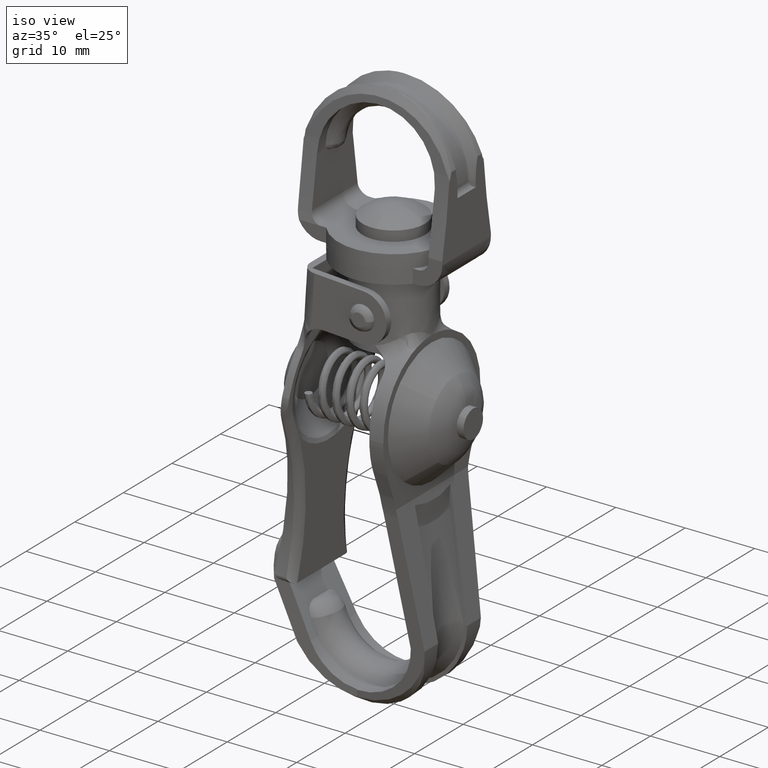
[diagram: clean part render]
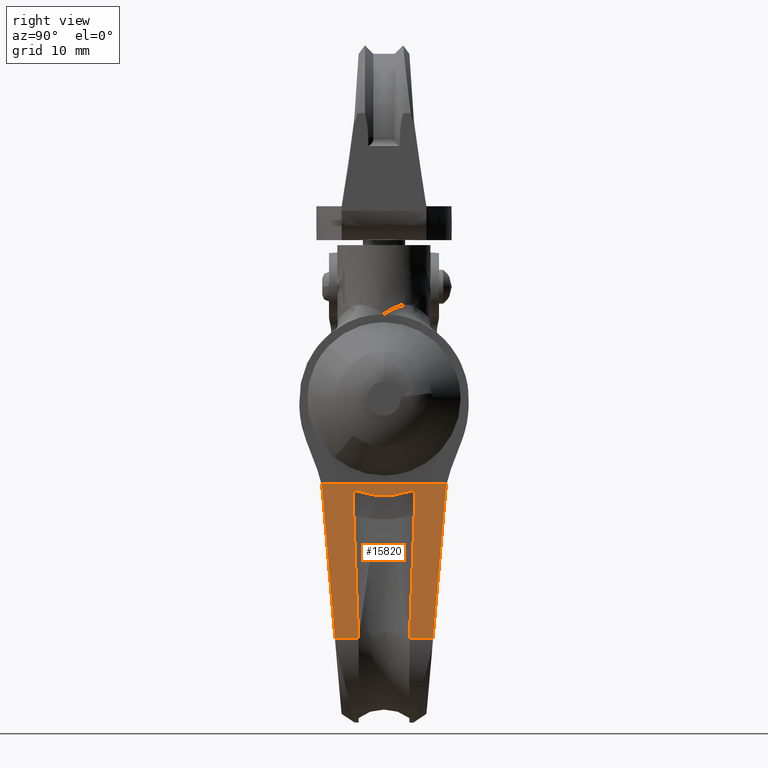
[diagram: tour spotlight — one face highlighted and labeled with its STEP entity id]
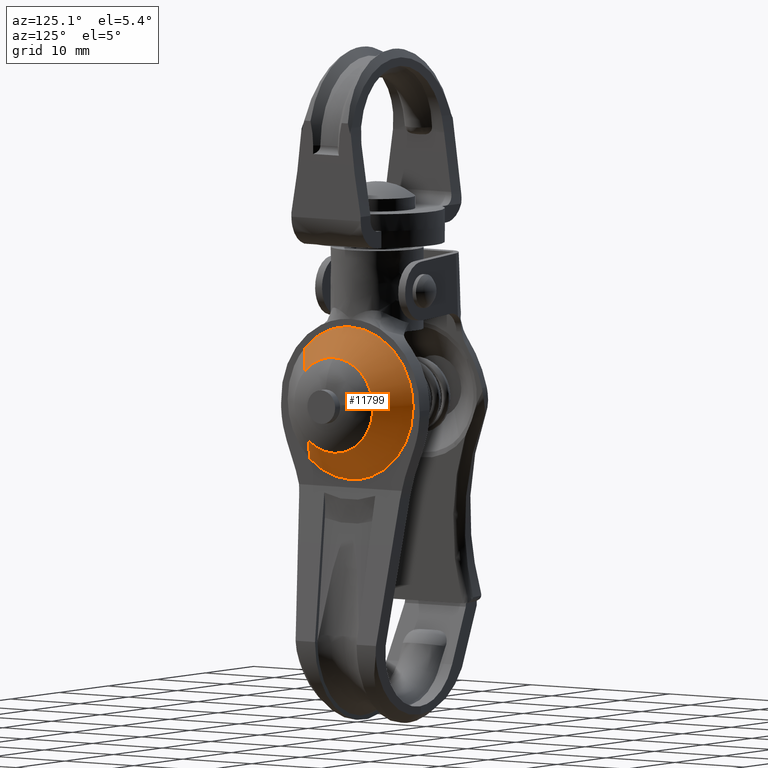
[diagram: tour spotlight — one face highlighted and labeled with its STEP entity id]
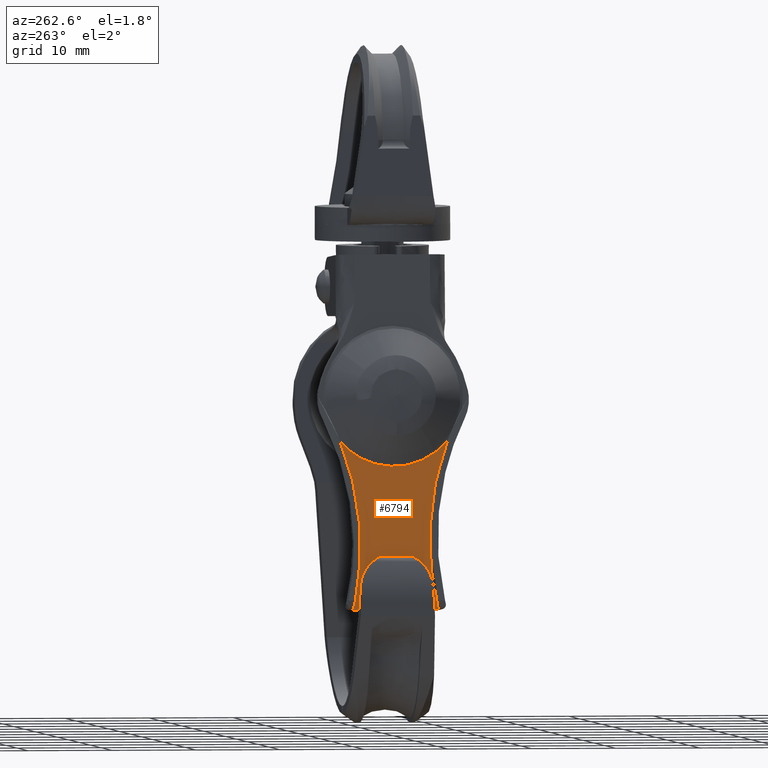
[diagram: tour spotlight — one face highlighted and labeled with its STEP entity id]
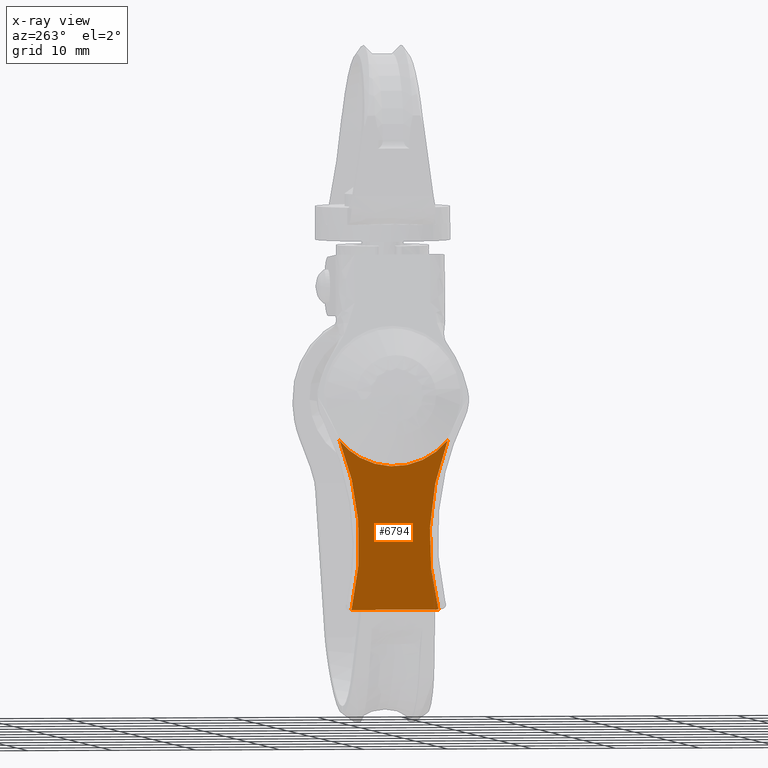
[diagram: x-ray of the same camera — body ghosted, this tour face saturated]
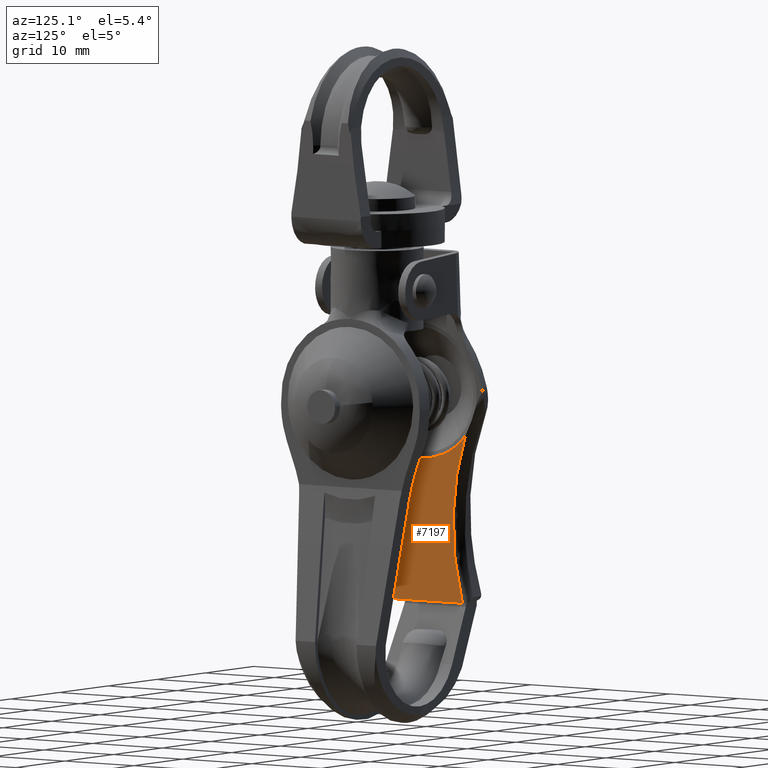
[diagram: tour spotlight — one face highlighted and labeled with its STEP entity id]
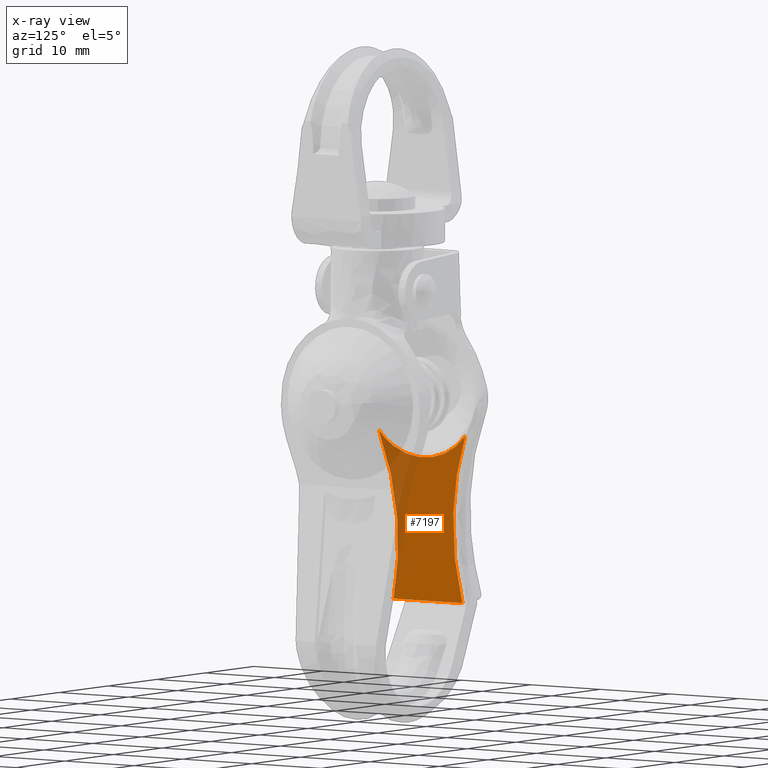
[diagram: x-ray of the same camera — body ghosted, this tour face saturated]
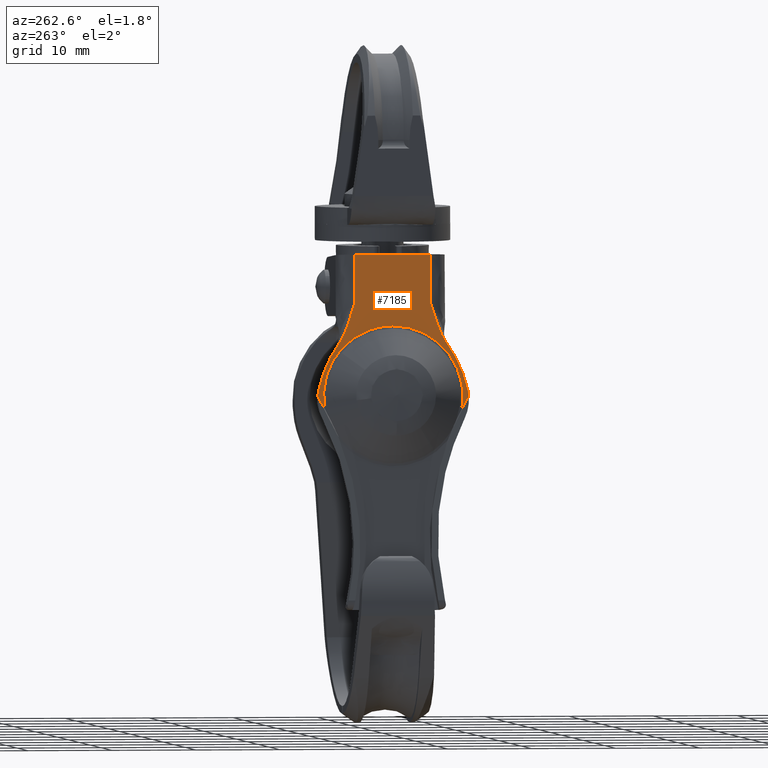
[diagram: tour spotlight — one face highlighted and labeled with its STEP entity id]
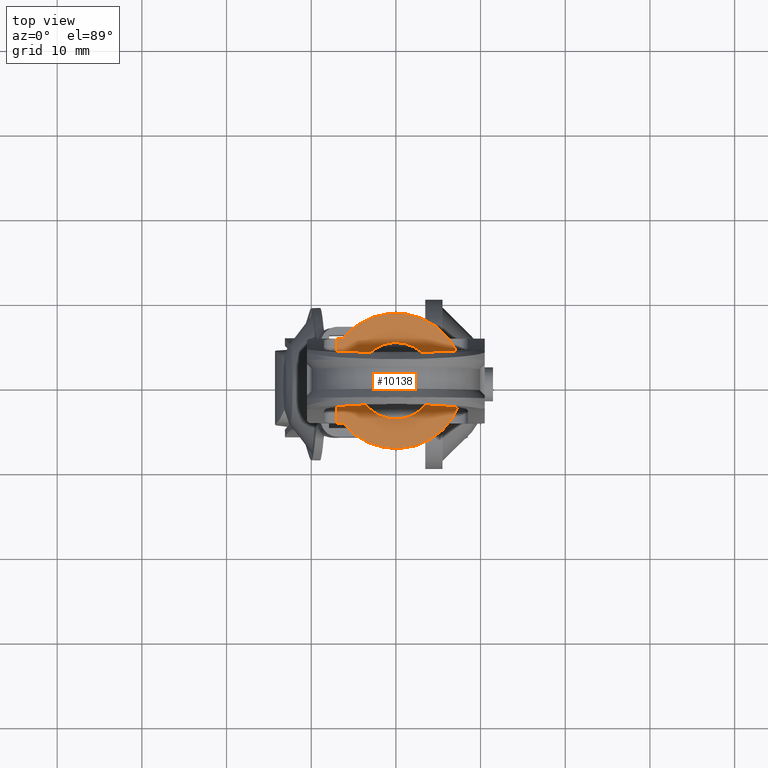
[diagram: tour spotlight — one face highlighted and labeled with its STEP entity id]
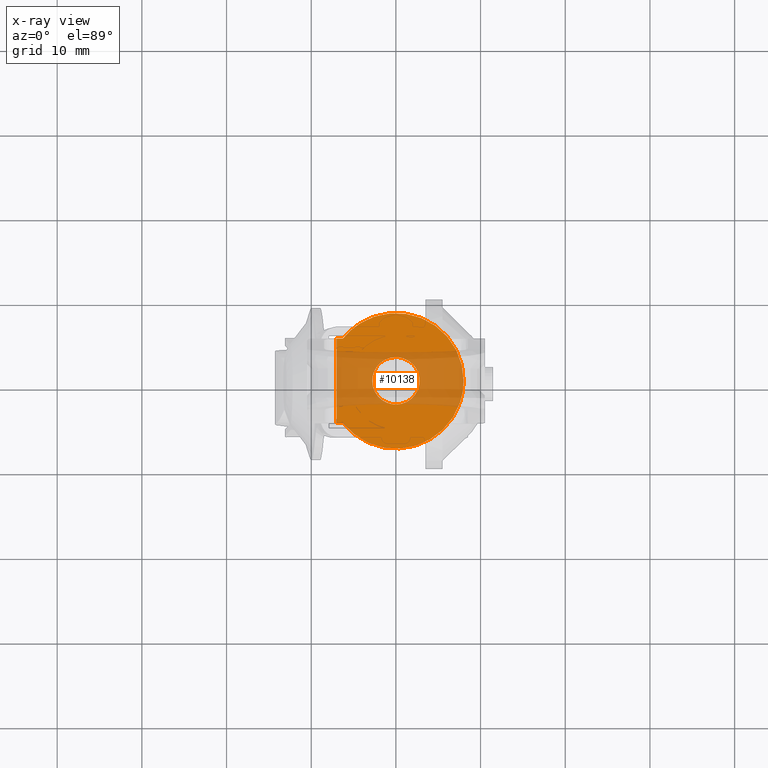
[diagram: x-ray of the same camera — body ghosted, this tour face saturated]
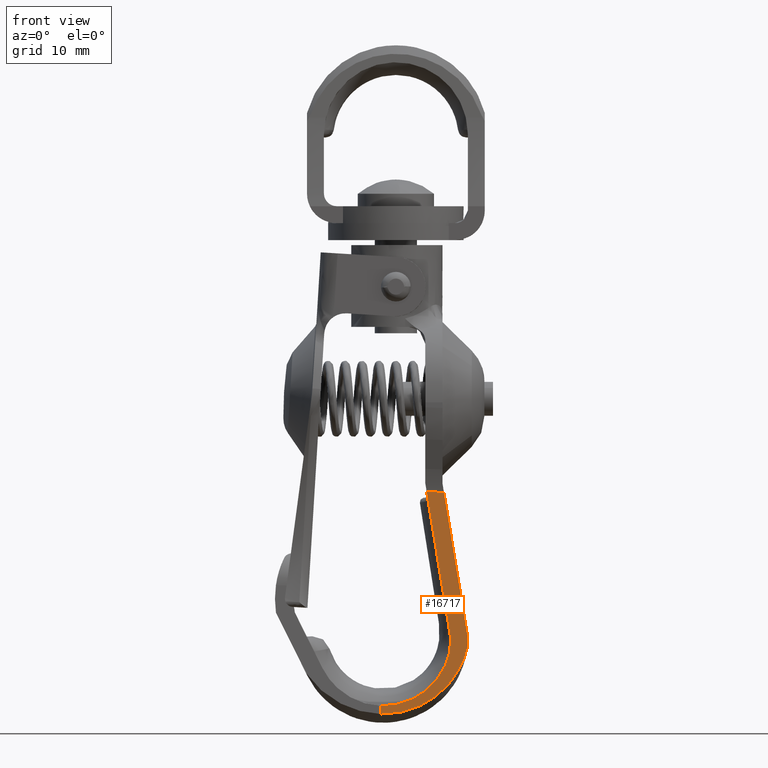
[diagram: tour spotlight — one face highlighted and labeled with its STEP entity id]
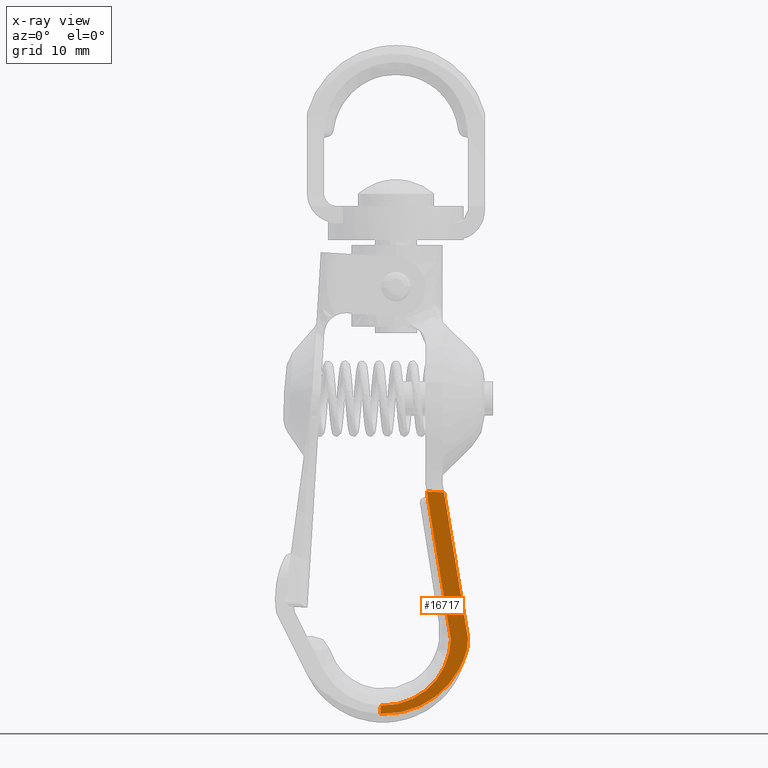
[diagram: x-ray of the same camera — body ghosted, this tour face saturated]
A machine part: a face-by-face anatomy tour. The part has 225 B-rep faces; the first image is the clean iso view, then the 7 largest visible faces are spotlighted one at a time (largest first), each with its STEP entity span.

Face 1 — right view, entity #15820. In plain terms, the highlighted face is a freeform B-spline surface patch.
Definition (entity closure, byte-faithful):
#12352=CARTESIAN_POINT('',(6.492566050170680,-3.677129945153345,-10.562791378773721));
#12353=VERTEX_POINT('',#12352);
#12372=CARTESIAN_POINT('',(6.492565433108830,3.677130022304630,-10.562788318836599));
#12373=VERTEX_POINT('',#12372);
#12381=CARTESIAN_POINT('',(6.492566050170680,-3.677129945153345,-10.562791378773721));
#12382=CARTESIAN_POINT('',(6.553427380620058,-2.832311718868536,-10.864595529359210));
#12383=CARTESIAN_POINT('',(6.620716063454966,-1.333865913664750,-11.198272161418600));
#12384=CARTESIAN_POINT('',(6.626142125579472,1.177504881982645,-11.225179362730341));
#12385=CARTESIAN_POINT('',(6.558734312742346,2.758865160569649,-10.890911979057940));
#12386=CARTESIAN_POINT('',(6.492565433108830,3.677130022304630,-10.562788318836599));
#12387=B_SPLINE_CURVE_WITH_KNOTS('',3,(#12381,#12382,#12383,#12384,#12385,#12386),.UNSPECIFIED.,.F.,.U.,(4,1,1,4),(0.000000014363720,2.697437141419304,4.573898305695435,7.505889987371173),.UNSPECIFIED.);
#12388=EDGE_CURVE('',#12353,#12373,#12387,.T.);
#12522=CARTESIAN_POINT('',(9.993474240685568,-3.000669316369555,-27.923381673378302));
#12523=VERTEX_POINT('',#12522);
#12524=CARTESIAN_POINT('',(6.492566050170680,-3.677129945153345,-10.562791378773721));
#12525=CARTESIAN_POINT('',(8.244173697678191,-3.491675373968884,-19.248806855461041));
#12526=CARTESIAN_POINT('',(9.993474240685568,-3.000669316369555,-27.923381673378302));
#12534=(BOUNDED_CURVE()B_SPLINE_CURVE(2,(#12524,#12525,#12526),.UNSPECIFIED.,.F.,.U.)CURVE()GEOMETRIC_REPRESENTATION_ITEM()QUASI_UNIFORM_CURVE()RATIONAL_B_SPLINE_CURVE((1.0,0.999851200496530,1.0))REPRESENTATION_ITEM(''));
#12535=EDGE_CURVE('',#12353,#12523,#12534,.T.);
#12566=CARTESIAN_POINT('',(9.993474240685579,3.000677244931470,-27.923381673378302));
#12567=VERTEX_POINT('',#12566);
#12568=CARTESIAN_POINT('',(9.993474240685579,3.000677244931470,-27.923381673378302));
#12569=CARTESIAN_POINT('',(8.244173375942461,3.491679428065386,-19.248805260011505));
#12570=CARTESIAN_POINT('',(6.492565433108830,3.677130022304630,-10.562788318836599));
#12578=(BOUNDED_CURVE()B_SPLINE_CURVE(2,(#12568,#12569,#12570),.UNSPECIFIED.,.F.,.U.)CURVE()GEOMETRIC_REPRESENTATION_ITEM()QUASI_UNIFORM_CURVE()RATIONAL_B_SPLINE_CURVE((1.0,0.999851200449181,1.0))REPRESENTATION_ITEM(''));
#12579=EDGE_CURVE('',#12567,#12373,#12578,.T.);
#15597=CARTESIAN_POINT('',(6.547080329252250,-7.267370412037300,-10.833121251149381));
#15598=VERTEX_POINT('',#15597);
#15604=CARTESIAN_POINT('',(6.335953260040860,-7.414765993744690,-9.786167046920170));
#15605=VERTEX_POINT('',#15604);
#15606=CARTESIAN_POINT('',(6.335953260040860,-7.414765993744690,-9.786167046920170));
#15607=CARTESIAN_POINT('',(6.405761764367093,-7.347202484743688,-10.132339176189401));
#15608=CARTESIAN_POINT('',(6.476263964535987,-7.297985110700842,-10.481951261223900));
#15609=CARTESIAN_POINT('',(6.547080329252250,-7.267370412037300,-10.833121251149381));
#15610=B_SPLINE_CURVE_WITH_KNOTS('',3,(#15606,#15607,#15608,#15609),.UNSPECIFIED.,.F.,.U.,(4,4),(4.769128E-010,1.078644062072723),.UNSPECIFIED.);
#15611=EDGE_CURVE('',#15605,#15598,#15610,.T.);
#15708=CARTESIAN_POINT('',(6.545795950374500,7.273253985553330,-10.826752167967239));
#15709=VERTEX_POINT('',#15708);
#15740=CARTESIAN_POINT('',(6.335953260040860,7.418148360749940,-9.786167046920170));
#15741=VERTEX_POINT('',#15740);
#15749=CARTESIAN_POINT('',(6.545795950374500,7.273253985553330,-10.826752167967239));
#15750=CARTESIAN_POINT('',(6.475418698967393,7.303257524831389,-10.477759689087049));
#15751=CARTESIAN_POINT('',(6.405345992884447,7.351645975509610,-10.130277414505571));
#15752=CARTESIAN_POINT('',(6.335953260040860,7.418148360749940,-9.786167046920170));
#15753=B_SPLINE_CURVE_WITH_KNOTS('',3,(#15749,#15750,#15751,#15752),.UNSPECIFIED.,.F.,.U.,(4,4),(4.624425E-010,1.071857928110767),.UNSPECIFIED.);
#15754=EDGE_CURVE('',#15709,#15741,#15753,.T.);
#15779=CARTESIAN_POINT('',(10.176167440913989,-8.155669897761843,-28.829335679075641));
#15780=CARTESIAN_POINT('',(6.153259994410877,-8.155669897761843,-8.880212716904158));
#15781=CARTESIAN_POINT('',(10.176167440913989,8.159052795233446,-28.829335679075641));
#15782=CARTESIAN_POINT('',(6.153259994410877,8.159052795233446,-8.880212716904158));
#15783=B_SPLINE_SURFACE_WITH_KNOTS('',1,1,((#15779,#15781),(#15780,#15782)),.UNSPECIFIED.,.F.,.F.,.U.,(2,2),(2,2),(0.0,20.350707390235058),(0.0,16.314722692995289),.UNSPECIFIED.);
#15784=ORIENTED_EDGE('',*,*,#12388,.T.);
#15785=ORIENTED_EDGE('',*,*,#12579,.F.);
#15786=CARTESIAN_POINT('',(9.993474240685579,5.802807388037671,-27.923381673378302));
#15787=VERTEX_POINT('',#15786);
#15788=CARTESIAN_POINT('',(9.993474240685579,3.000677244931470,-27.923381673378302));
#15789=CARTESIAN_POINT('',(9.993474240685579,5.802807388037671,-27.923381673378302));
#15790=QUASI_UNIFORM_CURVE('',1,(#15788,#15789),.UNSPECIFIED.,.F.,.U.);
#15791=EDGE_CURVE('',#12567,#15787,#15790,.T.);
#15792=ORIENTED_EDGE('',*,*,#15791,.T.);
#15793=CARTESIAN_POINT('',(9.993474240685579,5.802807388037671,-27.923381673378302));
#15794=CARTESIAN_POINT('',(6.545795950374500,7.273253985553330,-10.826752167967239));
#15795=QUASI_UNIFORM_CURVE('',1,(#15793,#15794),.UNSPECIFIED.,.F.,.U.);
#15796=EDGE_CURVE('',#15787,#15709,#15795,.T.);
#15797=ORIENTED_EDGE('',*,*,#15796,.T.);
#15798=ORIENTED_EDGE('',*,*,#15754,.T.);
#15799=CARTESIAN_POINT('',(6.335953260040860,-7.414765993744690,-9.786167046920170));
#15800=CARTESIAN_POINT('',(6.335953260040860,7.418148360749940,-9.786167046920170));
#15801=QUASI_UNIFORM_CURVE('',1,(#15799,#15800),.UNSPECIFIED.,.F.,.U.);
#15802=EDGE_CURVE('',#15605,#15741,#15801,.T.);
#15803=ORIENTED_EDGE('',*,*,#15802,.F.);
#15804=ORIENTED_EDGE('',*,*,#15611,.T.);
#15805=CARTESIAN_POINT('',(9.993474240685579,-5.800922972903500,-27.923381673378302));
#15806=VERTEX_POINT('',#15805);
#15807=CARTESIAN_POINT('',(9.993474240685579,-5.800922972903500,-27.923381673378302));
#15808=CARTESIAN_POINT('',(6.547080329252250,-7.267370412037300,-10.833121251149381));
#15809=QUASI_UNIFORM_CURVE('',1,(#15807,#15808),.UNSPECIFIED.,.F.,.U.);
#15810=EDGE_CURVE('',#15806,#15598,#15809,.T.);
#15811=ORIENTED_EDGE('',*,*,#15810,.F.);
#15812=CARTESIAN_POINT('',(9.993474240685579,-5.800922972903500,-27.923381673378302));
#15813=CARTESIAN_POINT('',(9.993474240685568,-3.000669316369555,-27.923381673378302));
#15814=QUASI_UNIFORM_CURVE('',1,(#15812,#15813),.UNSPECIFIED.,.F.,.U.);
#15815=EDGE_CURVE('',#15806,#12523,#15814,.T.);
#15816=ORIENTED_EDGE('',*,*,#15815,.T.);
#15817=ORIENTED_EDGE('',*,*,#12535,.F.);
#15818=EDGE_LOOP('',(#15784,#15785,#15792,#15797,#15798,#15803,#15804,#15811,#15816,#15817));
#15819=FACE_OUTER_BOUND('',#15818,.T.);
#15820=ADVANCED_FACE('',(#15819),#15783,.F.);

Face 2 — auxiliary view, entity #11799. In plain terms, the highlighted face is a freeform B-spline surface patch.
Definition (entity closure, byte-faithful):
#11602=CARTESIAN_POINT('',(6.224489722265945,-5.847331115583231,-6.702339080906222));
#11603=VERTEX_POINT('',#11602);
#11616=CARTESIAN_POINT('',(9.585233242697811,-3.661296520878399,-3.994308765095978));
#11617=VERTEX_POINT('',#11616);
#11618=CARTESIAN_POINT('',(9.585233242697811,-3.661296520878399,-3.994308765095978));
#11619=CARTESIAN_POINT('',(6.224489722265945,-5.847331115583231,-6.702339080906222));
#11620=QUASI_UNIFORM_CURVE('',1,(#11618,#11619),.UNSPECIFIED.,.F.,.U.);
#11621=EDGE_CURVE('',#11617,#11603,#11620,.T.);
#11635=CARTESIAN_POINT('',(9.287877888964108,-4.112805031218787,4.232513894922853));
#11636=VERTEX_POINT('',#11635);
#11646=CARTESIAN_POINT('',(5.749593961669129,-6.568419314665239,6.436436743727013));
#11647=VERTEX_POINT('',#11646);
#11648=CARTESIAN_POINT('',(9.287877888964108,-4.112805031218787,4.232513894922853));
#11649=CARTESIAN_POINT('',(5.749593961669129,-6.568419314665239,6.436436743727013));
#11650=QUASI_UNIFORM_CURVE('',1,(#11648,#11649),.UNSPECIFIED.,.F.,.U.);
#11651=EDGE_CURVE('',#11636,#11647,#11650,.T.);
#11666=CARTESIAN_POINT('',(9.376335159722833,-4.051414326706790,4.177415500030945));
#11667=CARTESIAN_POINT('',(9.229994058353114,-0.206765685581024,8.226185971259827));
#11668=CARTESIAN_POINT('',(9.368866578207008,3.844648641125766,4.384046255302111));
#11669=CARTESIAN_POINT('',(9.507739098060902,7.896062967832556,0.541906539344397));
#11670=CARTESIAN_POINT('',(9.654080199430622,4.051414326706790,-3.506863931884484));
#11671=CARTESIAN_POINT('',(9.792277921907985,0.420707157249826,-7.330334253758168));
#11672=CARTESIAN_POINT('',(9.669251685279651,-3.606645961321768,-3.926608373707647));
#11673=CARTESIAN_POINT('',(5.658925569399723,-6.631344162122004,6.492912016530981));
#11674=CARTESIAN_POINT('',(5.419394845067361,-0.338433522576649,13.119928723059671));
#11675=CARTESIAN_POINT('',(5.646701015098322,6.292910639545355,6.831124685536403));
#11676=CARTESIAN_POINT('',(5.874007185129283,12.924254801667360,0.542320648013132));
#11677=CARTESIAN_POINT('',(6.113537909461646,6.631344162122004,-6.084696058515561));
#11678=CARTESIAN_POINT('',(6.339739572946836,0.688612352679151,-12.342942081605846));
#11679=CARTESIAN_POINT('',(6.138370557026838,-5.903348488154499,-6.771732641152553));
#11687=(BOUNDED_SURFACE()B_SPLINE_SURFACE(2,1,((#11666,#11673),(#11667,#11674),(#11668,#11675),(#11669,#11676),(#11670,#11677),(#11671,#11678),(#11672,#11679)),.UNSPECIFIED.,.F.,.F.,.U.)B_SPLINE_SURFACE_WITH_KNOTS((3,2,2,3),(2,2),(0.0,15.146896821740910,30.293793643481820,44.834814592353112),(0.0,5.082981028472922),.UNSPECIFIED.)GEOMETRIC_REPRESENTATION_ITEM()RATIONAL_B_SPLINE_SURFACE(((1.0,1.0),(0.707106781186548,0.707106781186548),(1.0,1.0),(0.707106781186548,0.707106781186548),(1.0,1.0),(0.718822509939086,0.718822509939086),(0.977505800795127,0.977505800795127)))REPRESENTATION_ITEM('')SURFACE());
#11688=CARTESIAN_POINT('',(6.301826597674161,0.0,-8.841996054774644));
#11689=VERTEX_POINT('',#11688);
#11690=CARTESIAN_POINT('',(6.301826597674161,0.0,-8.841996054774644));
#11691=CARTESIAN_POINT('',(6.301827387627418,-0.496615758035641,-8.842017619609372));
#11692=CARTESIAN_POINT('',(6.298574060535194,-1.589181175078041,-8.752008264199210));
#11693=CARTESIAN_POINT('',(6.284814829161032,-3.002589632072740,-8.371335369284488));
#11694=CARTESIAN_POINT('',(6.260752741475826,-4.485052961278982,-7.705616742696010));
#11695=CARTESIAN_POINT('',(6.239938515606535,-5.341812736040264,-7.129755992409698));
#11696=CARTESIAN_POINT('',(6.224489722265945,-5.847331115583231,-6.702339080906222));
#11697=B_SPLINE_CURVE_WITH_KNOTS('',3,(#11690,#11691,#11692,#11693,#11694,#11695,#11696),.UNSPECIFIED.,.F.,.U.,(4,1,1,1,4),(0.000000017926240,1.489860611310006,3.277683066593676,4.370256231814357,6.356742927576567),.UNSPECIFIED.);
#11698=EDGE_CURVE('',#11689,#11603,#11697,.T.);
#11699=ORIENTED_EDGE('',*,*,#11698,.F.);
#11700=CARTESIAN_POINT('',(5.974743383944114,9.055212462246955,0.207306191756661));
#11701=VERTEX_POINT('',#11700);
#11702=CARTESIAN_POINT('',(5.974743383944114,9.055212462246955,0.207306191756661));
#11703=CARTESIAN_POINT('',(6.001503745219280,9.055427961832358,-0.533063803522792));
#11704=CARTESIAN_POINT('',(6.040300992958931,8.922606401843346,-1.606454324320108));
#11705=CARTESIAN_POINT('',(6.094056702942218,8.461128504500252,-3.093695633856983));
#11706=CARTESIAN_POINT('',(6.143951742997023,7.818325998196380,-4.474125075375110));
#11707=CARTESIAN_POINT('',(6.192860241330484,6.826901151232989,-5.827260195932280));
#11708=CARTESIAN_POINT('',(6.236417260047602,5.512602878126329,-7.032337713774132));
#11709=CARTESIAN_POINT('',(6.270947182051663,4.003284284993326,-7.987665555882961));
#11710=CARTESIAN_POINT('',(6.295869711165932,2.111308578206922,-8.677188861384732));
#11711=CARTESIAN_POINT('',(6.301832138985485,0.703791308159198,-8.842149364379226));
#11712=CARTESIAN_POINT('',(6.301826597674161,0.0,-8.841996054774644));
#11713=B_SPLINE_CURVE_WITH_KNOTS('',3,(#11702,#11703,#11704,#11705,#11706,#11707,#11708,#11709,#11710,#11711,#11712),.UNSPECIFIED.,.F.,.U.,(4,1,1,1,1,1,1,1,4),(0.000000064671932,2.222494670383181,3.222618191887612,4.667251440498781,6.778653010836936,8.223214978121908,10.001229731277011,12.112629372282431,14.223983157825730),.UNSPECIFIED.);
#11714=EDGE_CURVE('',#11701,#11689,#11713,.T.);
#11715=ORIENTED_EDGE('',*,*,#11714,.F.);
#11716=CARTESIAN_POINT('',(5.647660097779699,0.0,9.256610442305457));
#11717=VERTEX_POINT('',#11716);
#11718=CARTESIAN_POINT('',(5.647660097779699,0.0,9.256610442305457));
#11719=CARTESIAN_POINT('',(5.647658627811526,0.518579008569541,9.256651111424510));
#11720=CARTESIAN_POINT('',(5.651001771654078,1.592765588526876,9.164157465114993));
#11721=CARTESIAN_POINT('',(5.666418363489337,3.172884227739951,8.737631757671730));
#11722=CARTESIAN_POINT('',(5.693768846564552,4.748768353684659,7.980935059258279));
#11723=CARTESIAN_POINT('',(5.730128523134097,6.088725802138876,6.974984007500523));
#11724=CARTESIAN_POINT('',(5.778588133943174,7.319832464007230,5.634268108448897));
#11725=CARTESIAN_POINT('',(5.831540466228373,8.210747110502568,4.169253581892984));
#11726=CARTESIAN_POINT('',(5.899820915629976,8.887077391248607,2.280161148447431));
#11727=CARTESIAN_POINT('',(5.946645180970256,9.055441442728890,0.984689807367314));
#11728=CARTESIAN_POINT('',(5.974743383944114,9.055212462246955,0.207306191756661));
#11729=B_SPLINE_CURVE_WITH_KNOTS('',3,(#11718,#11719,#11720,#11721,#11722,#11723,#11724,#11725,#11726,#11727,#11728),.UNSPECIFIED.,.F.,.U.,(4,1,1,1,1,1,1,1,4),(0.000000064317861,1.555741687482357,3.222618447643962,4.889511650913262,6.778653548868032,8.223215631094746,10.334612687420099,11.890370199033489,14.223984288067800),.UNSPECIFIED.);
#11730=EDGE_CURVE('',#11717,#11701,#11729,.T.);
#11731=ORIENTED_EDGE('',*,*,#11730,.F.);
#11732=CARTESIAN_POINT('',(5.749593961669129,-6.568419314665239,6.436436743727013));
#11733=CARTESIAN_POINT('',(5.734548820547049,-6.173253681857085,6.852685856521370));
#11734=CARTESIAN_POINT('',(5.712662315457429,-5.477281490080019,7.458212864404739));
#11735=CARTESIAN_POINT('',(5.685258391130191,-4.278685359148785,8.216388736284955));
#11736=CARTESIAN_POINT('',(5.665818202883458,-3.088943256818967,8.754234571935790));
#11737=CARTESIAN_POINT('',(5.651222235171425,-1.607584698805304,9.158057126599360));
#11738=CARTESIAN_POINT('',(5.647658029141852,-0.574143369923756,9.256667371805348));
#11739=CARTESIAN_POINT('',(5.647660097779699,0.0,9.256610442305457));
#11740=B_SPLINE_CURVE_WITH_KNOTS('',3,(#11732,#11733,#11734,#11735,#11736,#11737,#11738,#11739),.UNSPECIFIED.,.F.,.U.,(4,1,1,1,1,4),(0.000000020350345,1.722435820737213,2.755898946455727,4.248660491119999,5.626625732906412,7.349061533284737),.UNSPECIFIED.);
#11741=EDGE_CURVE('',#11647,#11717,#11740,.T.);
#11742=ORIENTED_EDGE('',*,*,#11741,.F.);
#11743=ORIENTED_EDGE('',*,*,#11651,.F.);
#11744=CARTESIAN_POINT('',(9.224052256763283,0.0,5.998360812688622));
#11745=VERTEX_POINT('',#11744);
#11746=CARTESIAN_POINT('',(9.287877888964108,-4.112805031218787,4.232513894922853));
#11747=CARTESIAN_POINT('',(9.272169861912230,-3.700567422513146,4.667103087148594));
#11748=CARTESIAN_POINT('',(9.250349126888166,-2.910010886790486,5.270810940477469));
#11749=CARTESIAN_POINT('',(9.229016090648960,-1.485810566512414,5.861026476053795));
#11750=CARTESIAN_POINT('',(9.224044055353453,-0.551255306589986,5.998587125072856));
#11751=CARTESIAN_POINT('',(9.224052256763283,0.0,5.998360812688622));
#11752=B_SPLINE_CURVE_WITH_KNOTS('',3,(#11746,#11747,#11748,#11749,#11750,#11751),.UNSPECIFIED.,.F.,.U.,(4,1,1,4),(0.000000031379309,1.797506657934887,2.947891987326981,4.601602783478678),.UNSPECIFIED.);
#11753=EDGE_CURVE('',#11636,#11745,#11752,.T.);
#11754=ORIENTED_EDGE('',*,*,#11753,.T.);
#11755=CARTESIAN_POINT('',(9.405207512551250,5.631983877066109,0.986398732906908));
#11756=VERTEX_POINT('',#11755);
#11757=CARTESIAN_POINT('',(9.224052256763283,0.0,5.998360812688622));
#11758=CARTESIAN_POINT('',(9.224051517143332,0.322264090328010,5.998381275306506));
#11759=CARTESIAN_POINT('',(9.226108309423767,0.988284761734123,5.941476688471636));
#11760=CARTESIAN_POINT('',(9.235172072859299,1.926113575436000,5.690712566198685));
#11761=CARTESIAN_POINT('',(9.248862760334998,2.748184302304249,5.311936878895888));
#11762=CARTESIAN_POINT('',(9.267185410685302,3.522877429576311,4.805010218779200));
#11763=CARTESIAN_POINT('',(9.289376170509533,4.189542444759867,4.191065863285608));
#11764=CARTESIAN_POINT('',(9.316516137280923,4.767441640171320,3.440193449001427));
#11765=CARTESIAN_POINT('',(9.353362851467766,5.327855641664028,2.420767689588268));
#11766=CARTESIAN_POINT('',(9.384391999773646,5.565254972782254,1.562294586398206));
#11767=CARTESIAN_POINT('',(9.405207512551250,5.631983877066109,0.986398732906908));
#11768=B_SPLINE_CURVE_WITH_KNOTS('',3,(#11757,#11758,#11759,#11760,#11761,#11762,#11763,#11764,#11765,#11766,#11767),.UNSPECIFIED.,.F.,.U.,(4,1,1,1,1,1,1,1,4),(0.000000105457001,0.966795622656391,1.998088955640567,2.900455724722988,3.673939866886255,4.769608047786218,5.607530508076833,6.509908266838908,8.250177511339784),.UNSPECIFIED.);
#11769=EDGE_CURVE('',#11745,#11756,#11768,.T.);
#11770=ORIENTED_EDGE('',*,*,#11769,.T.);
#11771=CARTESIAN_POINT('',(9.633657525117203,0.0,-5.334051614916429));
#11772=VERTEX_POINT('',#11771);
#11773=CARTESIAN_POINT('',(9.405207512551250,5.631983877066109,0.986398732906908));
#11774=CARTESIAN_POINT('',(9.417715897760171,5.672270881376556,0.640333408777815));
#11775=CARTESIAN_POINT('',(9.442098606734019,5.688077060608531,-0.034254872861753));
#11776=CARTESIAN_POINT('',(9.477780603199879,5.534341139160320,-1.021456775123212));
#11777=CARTESIAN_POINT('',(9.517985411516671,5.158662018832822,-2.133789805262297));
#11778=CARTESIAN_POINT('',(9.558251423700909,4.475714791857413,-3.247816142394203));
#11779=CARTESIAN_POINT('',(9.592096107067146,3.497972599054854,-4.184185715549907));
#11780=CARTESIAN_POINT('',(9.611362625153937,2.621565769305279,-4.717226049288102));
#11781=CARTESIAN_POINT('',(9.628362450566353,1.493895681130638,-5.187554552367676));
#11782=CARTESIAN_POINT('',(9.633674747875533,0.647535393748566,-5.334528111238840));
#11783=CARTESIAN_POINT('',(9.633657525117203,0.0,-5.334051614916429));
#11784=B_SPLINE_CURVE_WITH_KNOTS('',3,(#11773,#11774,#11775,#11776,#11777,#11778,#11779,#11780,#11781,#11782,#11783),.UNSPECIFIED.,.F.,.U.,(4,1,1,1,1,1,1,1,4),(0.000000129450669,1.045880950739079,2.017077248626507,2.988278228894057,4.557149243455759,5.901824967582586,7.022439801712081,7.620099661458388,9.562471921586649),.UNSPECIFIED.);
#11785=EDGE_CURVE('',#11756,#11772,#11784,.T.);
#11786=ORIENTED_EDGE('',*,*,#11785,.T.);
#11787=CARTESIAN_POINT('',(9.633657525117203,0.0,-5.334051614916429));
#11788=CARTESIAN_POINT('',(9.633674807237231,-0.642722707337365,-5.334528986582338));
#11789=CARTESIAN_POINT('',(9.627348664475022,-1.658181595450260,-5.159504491657352));
#11790=CARTESIAN_POINT('',(9.606887175853844,-2.865103968643670,-4.593401866041599));
#11791=CARTESIAN_POINT('',(9.592486615353606,-3.423873950198741,-4.194985691955882));
#11792=CARTESIAN_POINT('',(9.585233242697811,-3.661296520878399,-3.994308765095978));
#11793=B_SPLINE_CURVE_WITH_KNOTS('',3,(#11787,#11788,#11789,#11790,#11791,#11792),.UNSPECIFIED.,.F.,.U.,(4,1,1,4),(0.000000022763428,1.927956658544861,3.047390590231482,3.980263952392886),.UNSPECIFIED.);
#11794=EDGE_CURVE('',#11772,#11617,#11793,.T.);
#11795=ORIENTED_EDGE('',*,*,#11794,.T.);
#11796=ORIENTED_EDGE('',*,*,#11621,.T.);
#11797=EDGE_LOOP('',(#11699,#11715,#11731,#11742,#11743,#11754,#11770,#11786,#11795,#11796));
#11798=FACE_OUTER_BOUND('',#11797,.T.);
#11799=ADVANCED_FACE('',(#11798),#11687,.T.);

Face 3 — auxiliary view, entity #6794. An x-ray twin of the same camera follows (body ghosted, this face saturated) — the face is partly hidden behind the body. In plain terms, the highlighted face is a freeform B-spline surface patch.
Definition (entity closure, byte-faithful):
#6106=CARTESIAN_POINT('',(-9.111113999999748,6.443902373259920,-5.233973645127960));
#6107=VERTEX_POINT('',#6106);
#6117=CARTESIAN_POINT('',(-9.111113999999748,-6.443908104064800,-5.233966589534830));
#6118=VERTEX_POINT('',#6117);
#6119=CARTESIAN_POINT('',(-9.111113999999748,-6.443908104064800,-5.233966589534830));
#6120=CARTESIAN_POINT('',(-9.111113999999750,-6.007995968352265,-5.770915759567814));
#6121=CARTESIAN_POINT('',(-9.111113999999770,-5.084796615435338,-6.654493913205694));
#6122=CARTESIAN_POINT('',(-9.111113999999772,-3.688611079341324,-7.481089619953924));
#6123=CARTESIAN_POINT('',(-9.111113999999807,-2.287632455369341,-8.021168776550125));
#6124=CARTESIAN_POINT('',(-9.111113999999660,-0.925019653075904,-8.299282742969952));
#6125=CARTESIAN_POINT('',(-9.111113999999880,0.655651852982827,-8.321202679034533));
#6126=CARTESIAN_POINT('',(-9.111113999999734,2.292690850747567,-8.046005043708250));
#6127=CARTESIAN_POINT('',(-9.111113999999603,3.908437037685103,-7.397229448355645));
#6128=CARTESIAN_POINT('',(-9.111113999999899,5.345041710995413,-6.420420406627549));
#6129=CARTESIAN_POINT('',(-9.111113999999757,6.104814335648573,-5.651552309073418));
#6130=CARTESIAN_POINT('',(-9.111113999999748,6.443902373259920,-5.233973645127960));
#6131=B_SPLINE_CURVE_WITH_KNOTS('',3,(#6119,#6120,#6121,#6122,#6123,#6124,#6125,#6126,#6127,#6128,#6129,#6130),.UNSPECIFIED.,.F.,.U.,(4,1,1,1,1,1,1,1,1,4),(0.000000028707245,2.074839201603782,3.803912821771649,4.841358231351409,6.570429719148070,7.953597501873091,9.567392924928889,11.527008571705281,13.140809841731221,14.754561282459930),.UNSPECIFIED.);
#6132=EDGE_CURVE('',#6118,#6107,#6131,.T.);
#6756=CARTESIAN_POINT('',(-9.111113999999780,7.087648602604757,-4.233791722058104));
#6757=CARTESIAN_POINT('',(-9.111113999999780,-7.087654563861648,-4.233791722058104));
#6758=CARTESIAN_POINT('',(-9.111113999999780,7.087648602604757,-26.257667583573799));
#6759=CARTESIAN_POINT('',(-9.111113999999780,-7.087654563861648,-26.257667583573799));
#6760=B_SPLINE_SURFACE_WITH_KNOTS('',1,1,((#6756,#6758),(#6757,#6759)),.UNSPECIFIED.,.F.,.F.,.U.,(2,2),(2,2),(0.0,14.175303166466410),(0.0,22.023875861515702),.UNSPECIFIED.);
#6761=CARTESIAN_POINT('',(-9.111113999999770,-5.175218371175510,-25.257491999999999));
#6762=VERTEX_POINT('',#6761);
#6763=CARTESIAN_POINT('',(-9.111113999999748,-6.443908104064800,-5.233966589534830));
#6764=CARTESIAN_POINT('',(-9.111113999999773,-5.754078225618772,-7.015758176013154));
#6765=CARTESIAN_POINT('',(-9.111113999999757,-4.905878632032518,-9.931275923121898));
#6766=CARTESIAN_POINT('',(-9.111113999999740,-4.244504435011158,-14.399543289631660));
#6767=CARTESIAN_POINT('',(-9.111113999999766,-4.098505606978035,-19.291101296348881));
#6768=CARTESIAN_POINT('',(-9.111113999999773,-4.626374619329013,-23.042278810999811));
#6769=CARTESIAN_POINT('',(-9.111113999999770,-5.175218371175510,-25.257491999999999));
#6770=B_SPLINE_CURVE_WITH_KNOTS('',3,(#6763,#6764,#6765,#6766,#6767,#6768,#6769),.UNSPECIFIED.,.F.,.U.,(4,1,1,1,4),(7.911186E-009,5.731955973278598,9.075609932652389,13.533777561512720,20.380285948863289),.UNSPECIFIED.);
#6771=EDGE_CURVE('',#6118,#6762,#6770,.T.);
#6772=ORIENTED_EDGE('',*,*,#6771,.F.);
#6773=ORIENTED_EDGE('',*,*,#6132,.T.);
#6774=CARTESIAN_POINT('',(-9.111113999999748,5.175215371175680,-25.257491999999999));
#6775=VERTEX_POINT('',#6774);
#6776=CARTESIAN_POINT('',(-9.111113999999748,5.175215371175680,-25.257491999999999));
#6777=CARTESIAN_POINT('',(-9.111113999999738,4.817973674636567,-23.815007735836360));
#6778=CARTESIAN_POINT('',(-9.111113999999761,4.297084734631755,-20.882117393080978));
#6779=CARTESIAN_POINT('',(-9.111113999999770,4.118741735062761,-16.630450087085539));
#6780=CARTESIAN_POINT('',(-9.111113999999715,4.438212815150035,-12.762863740189660));
#6781=CARTESIAN_POINT('',(-9.111113999999819,5.160738086868623,-9.005589133219992));
#6782=CARTESIAN_POINT('',(-9.111113999999683,5.926620244716662,-6.570339252420343));
#6783=CARTESIAN_POINT('',(-9.111113999999748,6.443902373259920,-5.233973645127960));
#6784=B_SPLINE_CURVE_WITH_KNOTS('',3,(#6776,#6777,#6778,#6779,#6780,#6781,#6782,#6783),.UNSPECIFIED.,.F.,.U.,(4,1,1,1,1,4),(7.907783E-009,4.458185358032472,8.916378039269951,12.737667160360070,16.081315673873089,20.380278383216162),.UNSPECIFIED.);
#6785=EDGE_CURVE('',#6775,#6107,#6784,.T.);
#6786=ORIENTED_EDGE('',*,*,#6785,.F.);
#6787=CARTESIAN_POINT('',(-9.111113999999748,5.175215371175680,-25.257491999999999));
#6788=CARTESIAN_POINT('',(-9.111113999999770,-5.175218371175510,-25.257491999999999));
#6789=QUASI_UNIFORM_CURVE('',1,(#6787,#6788),.UNSPECIFIED.,.F.,.U.);
#6790=EDGE_CURVE('',#6775,#6762,#6789,.T.);
#6791=ORIENTED_EDGE('',*,*,#6790,.T.);
#6792=EDGE_LOOP('',(#6772,#6773,#6786,#6791));
#6793=FACE_OUTER_BOUND('',#6792,.T.);
#6794=ADVANCED_FACE('',(#6793),#6760,.F.);

Face 4 — auxiliary view, entity #7197. An x-ray twin of the same camera follows (body ghosted, this face saturated) — the face is partly hidden behind the body. In plain terms, the highlighted face is a freeform B-spline surface patch.
Definition (entity closure, byte-faithful):
#4860=CARTESIAN_POINT('',(-8.111113999999789,-6.234676845374630,-5.220625182790630));
#4861=VERTEX_POINT('',#4860);
#4879=CARTESIAN_POINT('',(-8.111113999999789,6.234671293565160,-5.220631812973670));
#4880=VERTEX_POINT('',#4879);
#4881=CARTESIAN_POINT('',(-8.111113999999789,6.234671293565160,-5.220631812973670));
#4882=CARTESIAN_POINT('',(-8.111113999999796,5.759738025201393,-5.788251825312698));
#4883=CARTESIAN_POINT('',(-8.111113999999786,4.874579051295837,-6.591270857777289));
#4884=CARTESIAN_POINT('',(-8.111113999999789,3.520316201256584,-7.364338325727114));
#4885=CARTESIAN_POINT('',(-8.111113999999819,2.170976297928441,-7.885635243359928));
#4886=CARTESIAN_POINT('',(-8.111113999999709,0.742743485016312,-8.151840361522098));
#4887=CARTESIAN_POINT('',(-8.111113999999853,-1.002144474056301,-8.128023625467897));
#4888=CARTESIAN_POINT('',(-8.111113999999729,-2.530815076786442,-7.788804779879146));
#4889=CARTESIAN_POINT('',(-8.111113999999839,-3.817170366492489,-7.209182052872373));
#4890=CARTESIAN_POINT('',(-8.111113999999690,-5.041968360213073,-6.441876697080287));
#4891=CARTESIAN_POINT('',(-8.111113999999859,-5.783464399490464,-5.759829090514920));
#4892=CARTESIAN_POINT('',(-8.111113999999789,-6.234676845374630,-5.220625182790630));
#4893=B_SPLINE_CURVE_WITH_KNOTS('',3,(#4881,#4882,#4883,#4884,#4885,#4886,#4887,#4888,#4889,#4890,#4891,#4892),.UNSPECIFIED.,.F.,.U.,(4,1,1,1,1,1,1,1,1,4),(0.000000056429659,2.220224975698645,3.552362587091587,4.662486814167378,6.549704024634468,7.881764838976487,9.879998709718091,11.212151726194820,12.100253824070981,14.209449113722380),.UNSPECIFIED.);
#4894=EDGE_CURVE('',#4880,#4861,#4893,.T.);
#5332=CARTESIAN_POINT('',(-8.111113999999789,4.969211828131970,-25.257491999999999));
#5333=VERTEX_POINT('',#5332);
#5391=CARTESIAN_POINT('',(-8.111113999999789,4.969211828131970,-25.257491999999999));
#5392=CARTESIAN_POINT('',(-8.111113999999784,4.588537202008844,-23.710666519631062));
#5393=CARTESIAN_POINT('',(-8.111113999999805,4.138541901044054,-21.087272203109428));
#5394=CARTESIAN_POINT('',(-8.111113999999782,3.943251257263010,-17.264796834122521));
#5395=CARTESIAN_POINT('',(-8.111113999999770,4.132524561691273,-13.387858417932851));
#5396=CARTESIAN_POINT('',(-8.111113999999901,4.854895231124134,-9.298183507887046));
#5397=CARTESIAN_POINT('',(-8.111113999999686,5.757824684663892,-6.459508356743301));
#5398=CARTESIAN_POINT('',(-8.111113999999789,6.234671293565160,-5.220631812973670));
#5399=B_SPLINE_CURVE_WITH_KNOTS('',3,(#5391,#5392,#5393,#5394,#5395,#5396,#5397,#5398),.UNSPECIFIED.,.F.,.U.,(4,1,1,1,1,4),(7.743914E-009,4.778926706681659,7.964879062656827,11.469418770751140,16.407649907411969,20.390088776001349),.UNSPECIFIED.);
#5400=EDGE_CURVE('',#5333,#4880,#5399,.T.);
#5437=CARTESIAN_POINT('',(-8.111113999999789,-4.969214828132000,-25.257491999999999));
#5438=VERTEX_POINT('',#5437);
#5446=CARTESIAN_POINT('',(-8.111113999999789,-6.234676845374630,-5.220625182790630));
#5447=CARTESIAN_POINT('',(-8.111113999999772,-5.662414733654090,-6.707267096068197));
#5448=CARTESIAN_POINT('',(-8.111113999999800,-4.932546361633379,-9.100447832654808));
#5449=CARTESIAN_POINT('',(-8.111113999999768,-4.240975125118125,-12.809649721887540));
#5450=CARTESIAN_POINT('',(-8.111113999999811,-3.917994044804263,-16.518612982164850));
#5451=CARTESIAN_POINT('',(-8.111113999999782,-4.086798846972796,-20.826568499362949));
#5452=CARTESIAN_POINT('',(-8.111113999999791,-4.613940256043840,-23.813785848619489));
#5453=CARTESIAN_POINT('',(-8.111113999999789,-4.969214828132000,-25.257491999999999));
#5454=B_SPLINE_CURVE_WITH_KNOTS('',3,(#5446,#5447,#5448,#5449,#5450,#5451,#5452,#5453),.UNSPECIFIED.,.F.,.U.,(4,1,1,1,1,4),(7.745612E-009,4.778928371757262,7.486990209279357,11.310117617559900,15.929762948405140,20.390095880320018),.UNSPECIFIED.);
#5455=EDGE_CURVE('',#4861,#5438,#5454,.T.);
#7085=CARTESIAN_POINT('',(-8.111113999999789,-4.969214828132000,-25.257491999999999));
#7086=CARTESIAN_POINT('',(-8.111113999999789,4.969211828131970,-25.257491999999999));
#7087=QUASI_UNIFORM_CURVE('',1,(#7085,#7086),.UNSPECIFIED.,.F.,.U.);
#7088=EDGE_CURVE('',#5438,#5333,#7087,.T.);
#7186=CARTESIAN_POINT('',(-8.111113999999789,6.857515091883868,-4.219783912198126));
#7187=CARTESIAN_POINT('',(-8.111113999999789,-6.857521089631977,-4.219783912198126));
#7188=CARTESIAN_POINT('',(-8.111113999999789,6.857515091883868,-26.258333987166701));
#7189=CARTESIAN_POINT('',(-8.111113999999789,-6.857521089631977,-26.258333987166701));
#7190=B_SPLINE_SURFACE_WITH_KNOTS('',1,1,((#7186,#7188),(#7187,#7189)),.UNSPECIFIED.,.F.,.F.,.U.,(2,2),(2,2),(0.0,13.715036181515851),(0.0,22.038550074968569),.UNSPECIFIED.);
#7191=ORIENTED_EDGE('',*,*,#4894,.T.);
#7192=ORIENTED_EDGE('',*,*,#5455,.T.);
#7193=ORIENTED_EDGE('',*,*,#7088,.T.);
#7194=ORIENTED_EDGE('',*,*,#5400,.T.);
#7195=EDGE_LOOP('',(#7191,#7192,#7193,#7194));
#7196=FACE_OUTER_BOUND('',#7195,.T.);
#7197=ADVANCED_FACE('',(#7196),#7190,.T.);

Face 5 — auxiliary view, entity #7185. In plain terms, the highlighted face is a freeform B-spline surface patch.
Definition (entity closure, byte-faithful):
#5596=CARTESIAN_POINT('',(-9.111113999999780,-4.500000000000000,11.061024504884561));
#5597=VERTEX_POINT('',#5596);
#5617=CARTESIAN_POINT('',(-9.111113999999748,-6.346947660415690,6.348546113056400));
#5618=VERTEX_POINT('',#5617);
#5619=CARTESIAN_POINT('',(-9.111113999999748,-6.346947660415690,6.348546113056400));
#5620=CARTESIAN_POINT('',(-9.111113999999750,-6.220818332019796,6.521875368266091));
#5621=CARTESIAN_POINT('',(-9.111113999999780,-6.109645230880044,6.702327236033053));
#5622=CARTESIAN_POINT('',(-9.111113999999777,-5.906733469296096,7.072486246240935));
#5623=CARTESIAN_POINT('',(-9.111113999999779,-5.815065131836248,7.262226878636424));
#5624=CARTESIAN_POINT('',(-9.111113999999780,-5.644452939883387,7.647767931140728));
#5625=CARTESIAN_POINT('',(-9.111113999999779,-5.565542577850575,7.843584301382783));
#5626=CARTESIAN_POINT('',(-9.111113999999786,-5.415837390552208,8.239081908527284));
#5627=CARTESIAN_POINT('',(-9.111113999999782,-5.345026543968276,8.438889363912747));
#5628=CARTESIAN_POINT('',(-9.111113999999780,-5.140155716963639,9.040837959584881));
#5629=CARTESIAN_POINT('',(-9.111113999999780,-5.013509882380745,9.445337463886823));
#5630=CARTESIAN_POINT('',(-9.111113999999779,-4.823784040376114,10.052164973057870));
#5631=CARTESIAN_POINT('',(-9.111113999999780,-4.760642863220166,10.254473272272460));
#5632=CARTESIAN_POINT('',(-9.111113999999784,-4.664447019268903,10.557457629551310));
#5633=CARTESIAN_POINT('',(-9.111113999999780,-4.615977438732167,10.708830079450770));
#5634=CARTESIAN_POINT('',(-9.111113999999779,-4.566623853570285,10.859917749794590));
#5635=CARTESIAN_POINT('',(-9.111113999999780,-4.533486213692687,10.960567078318260));
#5636=CARTESIAN_POINT('',(-9.111113999999816,-4.516715975371441,11.011066762949810));
#5637=CARTESIAN_POINT('',(-9.111113999999780,-4.500000000000000,11.061024504884561));
#5638=B_SPLINE_CURVE_WITH_KNOTS('',3,(#5619,#5620,#5621,#5622,#5623,#5624,#5625,#5626,#5627,#5628,#5629,#5630,#5631,#5632,#5633,#5634,#5635,#5636,#5637),.UNSPECIFIED.,.F.,.U.,(4,2,2,2,2,2,2,1,2,4),(0.0,0.125000000000000,0.250000000000000,0.375000000000000,0.499999999999999,0.749999999999999,0.874999999999999,0.937499999999999,0.968750000000000,1.0),.UNSPECIFIED.);
#5639=EDGE_CURVE('',#5618,#5597,#5638,.T.);
#5754=CARTESIAN_POINT('',(-9.111113999999780,4.499998000000000,11.061022226529881));
#5755=VERTEX_POINT('',#5754);
#5756=CARTESIAN_POINT('',(-9.111113999999748,6.346945307474501,6.348542475418090));
#5757=VERTEX_POINT('',#5756);
#5758=CARTESIAN_POINT('',(-9.111113999999780,4.499998000000000,11.061022226529881));
#5759=CARTESIAN_POINT('',(-9.111113999999812,4.516716332541605,11.011057420072881));
#5760=CARTESIAN_POINT('',(-9.111113999999782,4.533480949270375,10.960574594726770));
#5761=CARTESIAN_POINT('',(-9.111113999999780,4.566614486794490,10.859937859041921));
#5762=CARTESIAN_POINT('',(-9.111113999999782,4.615962211139552,10.708868464592770));
#5763=CARTESIAN_POINT('',(-9.111113999999782,4.664426617448916,10.557512738880330));
#5764=CARTESIAN_POINT('',(-9.111113999999782,4.760612599797701,10.254560495893370));
#5765=CARTESIAN_POINT('',(-9.111113999999782,4.823747848314574,10.052271829757000));
#5766=CARTESIAN_POINT('',(-9.111113999999780,5.013454967855568,9.445503522996756));
#5767=CARTESIAN_POINT('',(-9.111113999999784,5.140087701382495,9.041043611209631));
#5768=CARTESIAN_POINT('',(-9.111113999999779,5.344922351710046,8.439178957296551));
#5769=CARTESIAN_POINT('',(-9.111113999999779,5.415787039389664,8.239203819797174));
#5770=CARTESIAN_POINT('',(-9.111113999999779,5.565631448810303,7.843343121232555));
#5771=CARTESIAN_POINT('',(-9.111113999999779,5.644605605211797,7.647386945654404));
#5772=CARTESIAN_POINT('',(-9.111113999999779,5.815311305925150,7.261690191737666));
#5773=CARTESIAN_POINT('',(-9.111113999999777,5.907010587995703,7.071933894734768));
#5774=CARTESIAN_POINT('',(-9.111113999999780,6.109889917156787,6.701912631566708));
#5775=CARTESIAN_POINT('',(-9.111113999999750,6.221002888657954,6.521614985134155));
#5776=CARTESIAN_POINT('',(-9.111113999999748,6.346945307474501,6.348542475418090));
#5777=B_SPLINE_CURVE_WITH_KNOTS('',3,(#5758,#5759,#5760,#5761,#5762,#5763,#5764,#5765,#5766,#5767,#5768,#5769,#5770,#5771,#5772,#5773,#5774,#5775,#5776),.UNSPECIFIED.,.F.,.U.,(4,2,1,2,2,2,2,2,2,4),(0.0,0.031250000000000,0.062499999999999,0.124999999999999,0.249999999999999,0.500000000000000,0.625000000000000,0.750000000000000,0.875000000000000,1.0),.UNSPECIFIED.);
#5778=EDGE_CURVE('',#5755,#5757,#5777,.T.);
#5855=CARTESIAN_POINT('',(-9.111113999999780,-4.500000000000060,16.742508000000001));
#5856=VERTEX_POINT('',#5855);
#5857=CARTESIAN_POINT('',(-9.111113999999780,-4.500000000000000,11.061024504884561));
#5858=CARTESIAN_POINT('',(-9.111113999999780,-4.500000000000060,16.742508000000001));
#5859=QUASI_UNIFORM_CURVE('',1,(#5857,#5858),.UNSPECIFIED.,.F.,.U.);
#5860=EDGE_CURVE('',#5597,#5856,#5859,.T.);
#5934=CARTESIAN_POINT('',(-9.111113999999780,4.499998000000000,16.742508000000001));
#5935=VERTEX_POINT('',#5934);
#5936=CARTESIAN_POINT('',(-9.111113999999780,4.499998000000000,16.742508000000001));
#5937=CARTESIAN_POINT('',(-9.111113999999780,4.499998000000000,11.061022226529881));
#5938=QUASI_UNIFORM_CURVE('',1,(#5936,#5937),.UNSPECIFIED.,.F.,.U.);
#5939=EDGE_CURVE('',#5935,#5755,#5938,.T.);
#6177=CARTESIAN_POINT('',(-9.111113999999748,8.167141442906010,-1.488676783444280));
#6178=VERTEX_POINT('',#6177);
#6191=CARTESIAN_POINT('',(-9.111113999999748,-8.167139903359660,-1.488685229640316));
#6192=VERTEX_POINT('',#6191);
#6202=CARTESIAN_POINT('',(-9.111113999999780,-0.000005638914944,8.301708132304285));
#6203=VERTEX_POINT('',#6202);
#6204=CARTESIAN_POINT('',(-9.111113999999780,-0.000005638914944,8.301708132304285));
#6205=CARTESIAN_POINT('',(-9.111113999999787,-0.454286716976740,8.301731440090691));
#6206=CARTESIAN_POINT('',(-9.111113999999780,-1.438558942061107,8.220735779045734));
#6207=CARTESIAN_POINT('',(-9.111113999999775,-2.982242016857605,7.810320849750986));
#6208=CARTESIAN_POINT('',(-9.111113999999761,-4.411828485674722,7.092800089703350));
#6209=CARTESIAN_POINT('',(-9.111113999999784,-5.675392082185309,6.118843337688877));
#6210=CARTESIAN_POINT('',(-9.111113999999756,-6.543716211519540,5.160755563163591));
#6211=CARTESIAN_POINT('',(-9.111113999999766,-7.235406400712748,4.118198278621496));
#6212=CARTESIAN_POINT('',(-9.111113999999764,-7.720064732559973,3.129649156371947));
#6213=CARTESIAN_POINT('',(-9.111113999999757,-8.151429360759302,1.793537440170343));
#6214=CARTESIAN_POINT('',(-9.111113999999750,-8.360514684105148,0.246164350089415));
#6215=CARTESIAN_POINT('',(-9.111113999999711,-8.269043555676634,-0.930047015408587));
#6216=CARTESIAN_POINT('',(-9.111113999999748,-8.167139903359660,-1.488685229640316));
#6217=B_SPLINE_CURVE_WITH_KNOTS('',3,(#6204,#6205,#6206,#6207,#6208,#6209,#6210,#6211,#6212,#6213,#6214,#6215,#6216),.UNSPECIFIED.,.F.,.U.,(4,1,1,1,1,1,1,1,1,1,4),(0.000000045869280,1.362853721153771,2.952856814016876,4.770027553783827,6.132907587211220,7.722848838773148,8.631428456640265,9.880728006503723,11.016459811740321,12.833607210492911,14.537181819344250),.UNSPECIFIED.);
#6218=EDGE_CURVE('',#6203,#6192,#6217,.T.);
#6220=CARTESIAN_POINT('',(-9.111113999999748,8.167141442906010,-1.488676783444280));
#6221=CARTESIAN_POINT('',(-9.111113999999757,8.262243397500484,-0.967284353081066));
#6222=CARTESIAN_POINT('',(-9.111113999999741,8.339200497284702,-0.057803514916806));
#6223=CARTESIAN_POINT('',(-9.111113999999764,8.230546356718692,1.303915856783556));
#6224=CARTESIAN_POINT('',(-9.111113999999748,7.953290985784962,2.487384740465686));
#6225=CARTESIAN_POINT('',(-9.111113999999761,7.417703565765565,3.826183269611139));
#6226=CARTESIAN_POINT('',(-9.111113999999747,6.610551608262153,5.118122175239561));
#6227=CARTESIAN_POINT('',(-9.111113999999805,5.532159368226653,6.244348628273106));
#6228=CARTESIAN_POINT('',(-9.111113999999754,4.402232051006260,7.078848787355065));
#6229=CARTESIAN_POINT('',(-9.111113999999779,3.289689174516940,7.656357648358451));
#6230=CARTESIAN_POINT('',(-9.111113999999803,1.817023601387032,8.158105071368160));
#6231=CARTESIAN_POINT('',(-9.111113999999773,0.719296120931064,8.301917818493463));
#6232=CARTESIAN_POINT('',(-9.111113999999780,-0.000005638914944,8.301708132304285));
#6233=B_SPLINE_CURVE_WITH_KNOTS('',3,(#6220,#6221,#6222,#6223,#6224,#6225,#6226,#6227,#6228,#6229,#6230,#6231,#6232),.UNSPECIFIED.,.F.,.U.,(4,1,1,1,1,1,1,1,1,1,4),(0.000000045868191,1.589983313205918,2.725713377525558,4.088587883805630,5.224303644083841,7.041461635944939,8.631430055312567,9.880729836574799,11.243607328479090,12.379339870202539,14.537184511875720),.UNSPECIFIED.);
#6234=EDGE_CURVE('',#6178,#6203,#6233,.T.);
#6269=CARTESIAN_POINT('',(-9.111113999999748,-8.987716319617430,-0.049026507805902));
#6270=VERTEX_POINT('',#6269);
#6326=CARTESIAN_POINT('',(-9.111113999999748,8.987714215372481,-0.049025023366577));
#6327=VERTEX_POINT('',#6326);
#6733=CARTESIAN_POINT('',(-9.111113999999780,4.499998000000000,16.742508000000001));
#6734=CARTESIAN_POINT('',(-9.111113999999780,-4.500000000000060,16.742508000000001));
#6735=QUASI_UNIFORM_CURVE('',1,(#6733,#6734),.UNSPECIFIED.,.F.,.U.);
#6736=EDGE_CURVE('',#5935,#5856,#6735,.T.);
#6820=CARTESIAN_POINT('',(-9.111113999999748,-8.890854170494190,0.639719781915540));
#6821=VERTEX_POINT('',#6820);
#6822=CARTESIAN_POINT('',(-9.111113999999748,-6.346947660415690,6.348546113056400));
#6823=CARTESIAN_POINT('',(-9.111113999999757,-7.041781486076458,5.394145952852494));
#6824=CARTESIAN_POINT('',(-9.111113999999766,-8.074894810987660,3.550562883116978));
#6825=CARTESIAN_POINT('',(-9.111113999999725,-8.700124548511518,1.537875970742852));
#6826=CARTESIAN_POINT('',(-9.111113999999748,-8.890854170494190,0.639719781915540));
#6827=B_SPLINE_CURVE_WITH_KNOTS('',3,(#6822,#6823,#6824,#6825,#6826),.UNSPECIFIED.,.F.,.U.,(4,1,4),(5.237224E-009,3.541548519076604,6.296101126318743),.UNSPECIFIED.);
#6828=EDGE_CURVE('',#5618,#6821,#6827,.T.);
#6852=CARTESIAN_POINT('',(-9.111113999999748,8.890852089870382,0.639717915923361));
#6853=VERTEX_POINT('',#6852);
#6854=CARTESIAN_POINT('',(-9.111113999999748,8.890852089870382,0.639717915923361));
#6855=CARTESIAN_POINT('',(-9.111113999999759,8.645795187863762,1.794542590049760));
#6856=CARTESIAN_POINT('',(-9.111113999999715,7.965762053233123,3.795461134977861));
#6857=CARTESIAN_POINT('',(-9.111113999999777,6.887254096126628,5.606162279634985));
#6858=CARTESIAN_POINT('',(-9.111113999999748,6.346945307474501,6.348542475418090));
#6859=B_SPLINE_CURVE_WITH_KNOTS('',3,(#6854,#6855,#6856,#6857,#6858),.UNSPECIFIED.,.F.,.U.,(4,1,4),(5.237242E-009,3.541547643726584,6.296099570125100),.UNSPECIFIED.);
#6860=EDGE_CURVE('',#6853,#5757,#6859,.T.);
#6980=CARTESIAN_POINT('',(-9.111113999999748,8.167141442906010,-1.488676783444280));
#6981=CARTESIAN_POINT('',(-9.111113999999745,8.428666609416073,-1.002086345468415));
#6982=CARTESIAN_POINT('',(-9.111113999999763,8.702305124671943,-0.522002381837080));
#6983=CARTESIAN_POINT('',(-9.111113999999748,8.987714215372481,-0.049025023366577));
#6984=B_SPLINE_CURVE_WITH_KNOTS('',3,(#6980,#6981,#6982,#6983),.UNSPECIFIED.,.F.,.U.,(4,4),(3.877321E-011,1.657260557413234),.UNSPECIFIED.);
#6985=EDGE_CURVE('',#6178,#6327,#6984,.T.);
#7011=CARTESIAN_POINT('',(-9.111113999999748,-8.987716319617430,-0.049026507805902));
#7012=CARTESIAN_POINT('',(-9.111113999999754,-8.702305842679301,-0.522005809195370));
#7013=CARTESIAN_POINT('',(-9.111113999999752,-8.428666468866021,-1.002092300118217));
#7014=CARTESIAN_POINT('',(-9.111113999999748,-8.167139903359660,-1.488685229640316));
#7015=B_SPLINE_CURVE_WITH_KNOTS('',3,(#7011,#7012,#7013,#7014),.UNSPECIFIED.,.F.,.U.,(4,4),(3.876321E-011,1.657268412519847),.UNSPECIFIED.);
#7016=EDGE_CURVE('',#6270,#6192,#7015,.T.);
#7121=CARTESIAN_POINT('',(-9.111113999999748,-8.890854170494190,0.639719781915540));
#7122=CARTESIAN_POINT('',(-9.111113999999748,-8.939073777082559,0.412759470529715));
#7123=CARTESIAN_POINT('',(-9.111113999999752,-8.971472683730157,0.182428887775528));
#7124=CARTESIAN_POINT('',(-9.111113999999748,-8.987716319617430,-0.049026507805902));
#7125=B_SPLINE_CURVE_WITH_KNOTS('',3,(#7121,#7122,#7123,#7124),.UNSPECIFIED.,.F.,.U.,(4,4),(9.974598E-010,0.696094843692899),.UNSPECIFIED.);
#7126=EDGE_CURVE('',#6821,#6270,#7125,.T.);
#7154=CARTESIAN_POINT('',(-9.111113999999748,8.987714215372481,-0.049025023366577));
#7155=CARTESIAN_POINT('',(-9.111113999999761,8.971464191943412,0.182430235504885));
#7156=CARTESIAN_POINT('',(-9.111113999999743,8.939077569224786,0.412761431745606));
#7157=CARTESIAN_POINT('',(-9.111113999999748,8.890852089870382,0.639717915923361));
#7158=B_SPLINE_CURVE_WITH_KNOTS('',3,(#7154,#7155,#7156,#7157),.UNSPECIFIED.,.F.,.U.,(4,4),(9.974848E-010,0.696091525493556),.UNSPECIFIED.);
#7159=EDGE_CURVE('',#6327,#6853,#7158,.T.);
#7165=CARTESIAN_POINT('',(-9.111113999999780,9.885586598274394,17.653156066484939));
#7166=CARTESIAN_POINT('',(-9.111113999999780,-9.885589506083706,17.653156066484939));
#7167=CARTESIAN_POINT('',(-9.111113999999780,9.885586598274394,-2.399333785123968));
#7168=CARTESIAN_POINT('',(-9.111113999999780,-9.885589506083706,-2.399333785123968));
#7169=B_SPLINE_SURFACE_WITH_KNOTS('',1,1,((#7165,#7167),(#7166,#7168)),.UNSPECIFIED.,.F.,.F.,.U.,(2,2),(2,2),(0.0,19.771176104358101),(0.0,20.052489851608911),.UNSPECIFIED.);
#7170=ORIENTED_EDGE('',*,*,#6736,.F.);
#7171=ORIENTED_EDGE('',*,*,#5939,.T.);
#7172=ORIENTED_EDGE('',*,*,#5778,.T.);
#7173=ORIENTED_EDGE('',*,*,#6860,.F.);
#7174=ORIENTED_EDGE('',*,*,#7159,.F.);
#7175=ORIENTED_EDGE('',*,*,#6985,.F.);
#7176=ORIENTED_EDGE('',*,*,#6234,.T.);
#7177=ORIENTED_EDGE('',*,*,#6218,.T.);
#7178=ORIENTED_EDGE('',*,*,#7016,.F.);
#7179=ORIENTED_EDGE('',*,*,#7126,.F.);
#7180=ORIENTED_EDGE('',*,*,#6828,.F.);
#7181=ORIENTED_EDGE('',*,*,#5639,.T.);
#7182=ORIENTED_EDGE('',*,*,#5860,.T.);
#7183=EDGE_LOOP('',(#7170,#7171,#7172,#7173,#7174,#7175,#7176,#7177,#7178,#7179,#7180,#7181,#7182));
#7184=FACE_OUTER_BOUND('',#7183,.T.);
#7185=ADVANCED_FACE('',(#7184),#7169,.F.);

Face 6 — top view, entity #10138. An x-ray twin of the same camera follows (body ghosted, this face saturated) — the face is partly hidden behind the body. In plain terms, the highlighted face is a freeform B-spline surface patch.
Definition (entity closure, byte-faithful):
#7329=CARTESIAN_POINT('',(-1.808077845468649,2.137956079286950,22.742507999999798));
#7330=VERTEX_POINT('',#7329);
#7336=CARTESIAN_POINT('',(-2.800000000000000,0.0,22.742507999999798));
#7337=VERTEX_POINT('',#7336);
#7338=CARTESIAN_POINT('',(-1.808077845468649,2.137956079286950,22.742507999999798));
#7339=CARTESIAN_POINT('',(-1.972572787755188,1.998901905049298,22.742507999999759));
#7340=CARTESIAN_POINT('',(-2.260466362043090,1.691871649831551,22.742507999999908));
#7341=CARTESIAN_POINT('',(-2.550124934801962,1.196879987920898,22.742507999999770));
#7342=CARTESIAN_POINT('',(-2.749010401221812,0.633474693089622,22.742507999999908));
#7343=CARTESIAN_POINT('',(-2.800077421122102,0.240740210386763,22.742507999999599));
#7344=CARTESIAN_POINT('',(-2.800000000000000,0.0,22.742507999999798));
#7345=B_SPLINE_CURVE_WITH_KNOTS('',3,(#7338,#7339,#7340,#7341,#7342,#7343,#7344),.UNSPECIFIED.,.F.,.U.,(4,1,1,1,4),(0.000000046890785,0.646176547532029,1.254319086968803,1.710464703299384,2.432663427392573),.UNSPECIFIED.);
#7346=EDGE_CURVE('',#7330,#7337,#7345,.T.);
#7348=CARTESIAN_POINT('',(0.000001225752662,-2.799999999999731,22.742507999999798));
#7349=VERTEX_POINT('',#7348);
#7350=CARTESIAN_POINT('',(-2.800000000000000,0.0,22.742507999999798));
#7351=CARTESIAN_POINT('',(-2.800346642641650,-0.366583387664806,22.742507999999852));
#7352=CARTESIAN_POINT('',(-2.690511651278545,-0.916060100137325,22.742507999999710));
#7353=CARTESIAN_POINT('',(-2.364784160940393,-1.525017012827912,22.742507999999919));
#7354=CARTESIAN_POINT('',(-2.053915027148192,-1.923392737978893,22.742507999999621));
#7355=CARTESIAN_POINT('',(-1.644619518735769,-2.294407994673747,22.742507999999891));
#7356=CARTESIAN_POINT('',(-0.961855928066154,-2.681303693362057,22.742507999999919));
#7357=CARTESIAN_POINT('',(-0.366586557283441,-2.800400858290721,22.742507999999699));
#7358=CARTESIAN_POINT('',(0.000001225752662,-2.799999999999731,22.742507999999798));
#7359=B_SPLINE_CURVE_WITH_KNOTS('',3,(#7350,#7351,#7352,#7353,#7354,#7355,#7356,#7357,#7358),.UNSPECIFIED.,.F.,.U.,(4,1,1,1,1,1,4),(0.000000040536489,1.099586072654975,1.649386378235303,2.061722737494356,2.611503393959064,3.298755596768871,4.398340775008698),.UNSPECIFIED.);
#7360=EDGE_CURVE('',#7337,#7349,#7359,.T.);
#7362=CARTESIAN_POINT('',(2.800000000000000,0.0,22.742507999999798));
#7363=VERTEX_POINT('',#7362);
#7364=CARTESIAN_POINT('',(0.000001225752662,-2.799999999999731,22.742507999999798));
#7365=CARTESIAN_POINT('',(0.366561753962915,-2.800369666342442,22.742507999999731));
#7366=CARTESIAN_POINT('',(1.007718098178856,-2.672226952164414,22.742507999999969));
#7367=CARTESIAN_POINT('',(1.722680580860057,-2.243540029980078,22.742507999999610));
#7368=CARTESIAN_POINT('',(2.178380943592532,-1.787750530664058,22.742507999999990));
#7369=CARTESIAN_POINT('',(2.485299872135095,-1.328425773904369,22.742507999999631));
#7370=CARTESIAN_POINT('',(2.731955692559544,-0.732972509237316,22.742507999999908));
#7371=CARTESIAN_POINT('',(2.800128931493812,-0.274903200081700,22.742507999999770));
#7372=CARTESIAN_POINT('',(2.800000000000000,0.0,22.742507999999798));
#7373=B_SPLINE_CURVE_WITH_KNOTS('',3,(#7364,#7365,#7366,#7367,#7368,#7369,#7370,#7371,#7372),.UNSPECIFIED.,.F.,.U.,(4,1,1,1,1,1,4),(0.000000042217727,1.099585728592868,1.924276516154805,2.474058249794929,3.023847937429354,3.573661182987908,4.398339393265292),.UNSPECIFIED.);
#7374=EDGE_CURVE('',#7349,#7363,#7373,.T.);
#7376=CARTESIAN_POINT('',(2.031047931181829,1.927392691575838,22.742507999999798));
#7377=VERTEX_POINT('',#7376);
#7378=CARTESIAN_POINT('',(2.800000000000000,0.0,22.742507999999798));
#7379=CARTESIAN_POINT('',(2.800079962767200,0.243594783264573,22.742507999999781));
#7380=CARTESIAN_POINT('',(2.750535618750247,0.619986669812825,22.742507999999820));
#7381=CARTESIAN_POINT('',(2.518945857055658,1.291606979544133,22.742507999999749));
#7382=CARTESIAN_POINT('',(2.259920335001553,1.686602952381873,22.742507999999820));
#7383=CARTESIAN_POINT('',(2.031047931181829,1.927392691575838,22.742507999999798));
#7384=B_SPLINE_CURVE_WITH_KNOTS('',3,(#7378,#7379,#7380,#7381,#7382,#7383),.UNSPECIFIED.,.F.,.U.,(4,1,1,4),(0.000000025844564,0.730771830668530,1.129359373378854,2.125860885541986),.UNSPECIFIED.);
#7385=EDGE_CURVE('',#7363,#7377,#7384,.T.);
#7466=CARTESIAN_POINT('',(-0.000001225752686,2.799999999999732,22.742507999999798));
#7467=VERTEX_POINT('',#7466);
#7468=CARTESIAN_POINT('',(2.031047931181829,1.927392691575838,22.742507999999798));
#7469=CARTESIAN_POINT('',(1.786858152095856,2.185249640465524,22.742507999999809));
#7470=CARTESIAN_POINT('',(1.335848337659913,2.507414513490149,22.742507999999809));
#7471=CARTESIAN_POINT('',(0.615423524457744,2.753841327950405,22.742507999999770));
#7472=CARTESIAN_POINT('',(0.213040146339902,2.800041263871568,22.742507999999830));
#7473=CARTESIAN_POINT('',(-0.000001225752686,2.799999999999732,22.742507999999798));
#7474=B_SPLINE_CURVE_WITH_KNOTS('',3,(#7468,#7469,#7470,#7471,#7472,#7473),.UNSPECIFIED.,.F.,.U.,(4,1,1,4),(0.000000019903069,1.065225715411489,1.633345362714454,2.272480550743768),.UNSPECIFIED.);
#7475=EDGE_CURVE('',#7377,#7467,#7474,.T.);
#7477=CARTESIAN_POINT('',(-0.000001225752686,2.799999999999732,22.742507999999798));
#7478=CARTESIAN_POINT('',(-0.307148157907213,2.800173240643021,22.742507999999781));
#7479=CARTESIAN_POINT('',(-0.962199656685669,2.691071498778805,22.742507999999841));
#7480=CARTESIAN_POINT('',(-1.542485109173152,2.362998638596845,22.742507999999791));
#7481=CARTESIAN_POINT('',(-1.808077845468649,2.137956079286950,22.742507999999798));
#7482=B_SPLINE_CURVE_WITH_KNOTS('',3,(#7477,#7478,#7479,#7480,#7481),.UNSPECIFIED.,.F.,.U.,(4,1,4),(0.000000028076938,0.921393450470784,1.965623382968376),.UNSPECIFIED.);
#7483=EDGE_CURVE('',#7467,#7330,#7482,.T.);
#9346=CARTESIAN_POINT('',(-6.244993088477510,5.000006132483050,22.742507999999798));
#9347=VERTEX_POINT('',#9346);
#9353=CARTESIAN_POINT('',(7.999999999999737,0.000002053197772,22.742507999999798));
#9354=VERTEX_POINT('',#9353);
#9355=CARTESIAN_POINT('',(7.999999999999737,0.000002053197772,22.742507999999798));
#9356=CARTESIAN_POINT('',(8.000184490506786,0.693705892932860,22.742507999999770));
#9357=CARTESIAN_POINT('',(7.845291360053550,1.875441821857871,22.742507999999830));
#9358=CARTESIAN_POINT('',(7.214318064456211,3.595198720519977,22.742507999999830));
#9359=CARTESIAN_POINT('',(6.412424326834141,4.863979100573192,22.742507999999791));
#9360=CARTESIAN_POINT('',(5.287205132209762,6.068208522809063,22.742508000000040));
#9361=CARTESIAN_POINT('',(4.075678180656390,6.954218648540497,22.742507999999638));
#9362=CARTESIAN_POINT('',(2.708931373822994,7.563538013610557,22.742507999999841));
#9363=CARTESIAN_POINT('',(1.564375561812712,7.868593512721658,22.742507999999781));
#9364=CARTESIAN_POINT('',(0.492350948823097,8.009216184711450,22.742507999999809));
#9365=CARTESIAN_POINT('',(-0.692577759364576,8.003965416918172,22.742507999999791));
#9366=CARTESIAN_POINT('',(-1.888520012306939,7.806737311371179,22.742507999999809));
#9367=CARTESIAN_POINT('',(-3.087223181722955,7.412698158872685,22.742507999999830));
#9368=CARTESIAN_POINT('',(-4.238215633147713,6.832522610548034,22.742507999999429));
#9369=CARTESIAN_POINT('',(-5.334697929956502,6.015509726406047,22.742508000001099));
#9370=CARTESIAN_POINT('',(-5.972042753987071,5.340964493324954,22.742507999997208));
#9371=CARTESIAN_POINT('',(-6.244993088477510,5.000006132483050,22.742507999999798));
#9372=B_SPLINE_CURVE_WITH_KNOTS('',3,(#9355,#9356,#9357,#9358,#9359,#9360,#9361,#9362,#9363,#9364,#9365,#9366,#9367,#9368,#9369,#9370,#9371),.UNSPECIFIED.,.F.,.U.,(4,1,1,1,1,1,1,1,1,1,1,1,1,1,4),(0.000000219734371,2.081069816920277,3.545550727659677,5.472486994088484,6.551583703174359,8.478520294417368,9.942900345819028,11.022027823566900,12.023998091986289,13.180188879261710,14.567583473704939,15.646672930781930,16.957009856640610,18.421489475852439,19.731755370523739),.UNSPECIFIED.);
#9373=EDGE_CURVE('',#9354,#9347,#9372,.T.);
#9375=CARTESIAN_POINT('',(-6.244991487192210,-5.000008132483070,22.742507999999798));
#9376=VERTEX_POINT('',#9375);
#9377=CARTESIAN_POINT('',(-6.244991487192210,-5.000008132483070,22.742507999999798));
#9378=CARTESIAN_POINT('',(-5.955990319380107,-5.361027359956663,22.742507999999749));
#9379=CARTESIAN_POINT('',(-5.350713275886506,-5.995395605145403,22.742507999999852));
#9380=CARTESIAN_POINT('',(-4.136033664220665,-6.909799149268379,22.742507999999869));
#9381=CARTESIAN_POINT('',(-2.759597340799445,-7.570642499871495,22.742507999999649));
#9382=CARTESIAN_POINT('',(-1.056356038764069,-7.988387486473778,22.742507999999901));
#9383=CARTESIAN_POINT('',(0.650701427443693,-8.045415658159634,22.742507999999571));
#9384=CARTESIAN_POINT('',(2.475622624130870,-7.679508045548532,22.742508000000210));
#9385=CARTESIAN_POINT('',(3.937001981245457,-7.019351046318426,22.742507999999670));
#9386=CARTESIAN_POINT('',(5.075362458932899,-6.219936339172090,22.742507999999820));
#9387=CARTESIAN_POINT('',(5.993172238490327,-5.353444382099074,22.742507999999798));
#9388=CARTESIAN_POINT('',(6.821127361527437,-4.265162053188597,22.742507999999820));
#9389=CARTESIAN_POINT('',(7.425425227840517,-3.067345592618268,22.742507999999791));
#9390=CARTESIAN_POINT('',(7.878633414911022,-1.644209228180615,22.742507999999809));
#9391=CARTESIAN_POINT('',(8.000165391009357,-0.642310674184162,22.742507999999798));
#9392=CARTESIAN_POINT('',(7.999999999999737,0.000002053197772,22.742507999999798));
#9393=B_SPLINE_CURVE_WITH_KNOTS('',3,(#9377,#9378,#9379,#9380,#9381,#9382,#9383,#9384,#9385,#9386,#9387,#9388,#9389,#9390,#9391,#9392),.UNSPECIFIED.,.F.,.U.,(4,1,1,1,1,1,1,1,1,1,1,1,1,4),(0.000000219718899,1.387338076663291,2.620590894839097,4.547552325543382,5.934958931203854,7.861913780993978,9.634663632469673,11.484488102546861,12.640624284046430,13.796809666562270,15.261286427870109,16.725775627951911,17.804871340763970,19.731756914884450),.UNSPECIFIED.);
#9394=EDGE_CURVE('',#9376,#9354,#9393,.T.);
#9441=CARTESIAN_POINT('',(-6.999999999999780,-5.000008132483070,22.742507999999798));
#9442=VERTEX_POINT('',#9441);
#9443=CARTESIAN_POINT('',(-6.999999999999780,-5.000008132483070,22.742507999999798));
#9444=CARTESIAN_POINT('',(-6.244991487192210,-5.000008132483070,22.742507999999798));
#9445=QUASI_UNIFORM_CURVE('',1,(#9443,#9444),.UNSPECIFIED.,.F.,.U.);
#9446=EDGE_CURVE('',#9442,#9376,#9445,.T.);
#9623=CARTESIAN_POINT('',(-6.999999999999780,5.000006132483050,22.742507999999798));
#9624=VERTEX_POINT('',#9623);
#9630=CARTESIAN_POINT('',(-6.999999999999780,5.000006132483050,22.742507999999798));
#9631=CARTESIAN_POINT('',(-6.244993088477510,5.000006132483050,22.742507999999798));
#9632=QUASI_UNIFORM_CURVE('',1,(#9630,#9631),.UNSPECIFIED.,.F.,.U.);
#9633=EDGE_CURVE('',#9624,#9347,#9632,.T.);
#10104=CARTESIAN_POINT('',(-6.999999999999780,5.000006132483050,22.742507999999798));
#10105=CARTESIAN_POINT('',(-6.999999999999780,-5.000008132483070,22.742507999999798));
#10106=QUASI_UNIFORM_CURVE('',1,(#10104,#10105),.UNSPECIFIED.,.F.,.U.);
#10107=EDGE_CURVE('',#9624,#9442,#10106,.T.);
#10118=CARTESIAN_POINT('',(-7.749249970926843,-8.798809285562989,22.742507999999798));
#10119=CARTESIAN_POINT('',(8.749250373258155,-8.798809285562989,22.742507999999798));
#10120=CARTESIAN_POINT('',(-7.749249970926843,8.798861371309785,22.742507999999798));
#10121=CARTESIAN_POINT('',(8.749250373258155,8.798861371309785,22.742507999999798));
#10122=B_SPLINE_SURFACE_WITH_KNOTS('',1,1,((#10118,#10120),(#10119,#10121)),.UNSPECIFIED.,.F.,.F.,.U.,(2,2),(2,2),(0.0,16.498500344185000),(0.0,17.597670656872769),.UNSPECIFIED.);
#10123=ORIENTED_EDGE('',*,*,#9446,.T.);
#10124=ORIENTED_EDGE('',*,*,#9394,.T.);
#10125=ORIENTED_EDGE('',*,*,#9373,.T.);
#10126=ORIENTED_EDGE('',*,*,#9633,.F.);
#10127=ORIENTED_EDGE('',*,*,#10107,.T.);
#10128=EDGE_LOOP('',(#10123,#10124,#10125,#10126,#10127));
#10129=FACE_OUTER_BOUND('',#10128,.T.);
#10130=ORIENTED_EDGE('',*,*,#7360,.F.);
#10131=ORIENTED_EDGE('',*,*,#7346,.F.);
#10132=ORIENTED_EDGE('',*,*,#7483,.F.);
#10133=ORIENTED_EDGE('',*,*,#7475,.F.);
#10134=ORIENTED_EDGE('',*,*,#7385,.F.);
#10135=ORIENTED_EDGE('',*,*,#7374,.F.);
#10136=EDGE_LOOP('',(#10130,#10131,#10132,#10133,#10134,#10135));
#10137=FACE_BOUND('',#10136,.T.);
#10138=ADVANCED_FACE('',(#10129,#10137),#10122,.T.);

Face 7 — front view, entity #16717. An x-ray twin of the same camera follows (body ghosted, this face saturated) — the face is partly hidden behind the body. In plain terms, the highlighted face is a freeform B-spline surface patch.
Definition (entity closure, byte-faithful):
#12616=CARTESIAN_POINT('',(0.0,-5.000000637086120,-37.257484575275953));
#12617=VERTEX_POINT('',#12616);
#12618=CARTESIAN_POINT('',(9.965218381197591,-5.698425080356289,-29.117911821281499));
#12619=VERTEX_POINT('',#12618);
#12620=CARTESIAN_POINT('',(0.0,-5.000000637086121,-37.257484575275953));
#12621=CARTESIAN_POINT('',(8.295925746085194,-5.000000637086121,-37.257484575275939));
#12622=CARTESIAN_POINT('',(9.965218381197591,-5.698425080356289,-29.117911821281499));
#12630=(BOUNDED_CURVE()B_SPLINE_CURVE(2,(#12620,#12621,#12622),.UNSPECIFIED.,.F.,.U.)CURVE()GEOMETRIC_REPRESENTATION_ITEM()QUASI_UNIFORM_CURVE()RATIONAL_B_SPLINE_CURVE((1.0,0.774989795884386,1.0))REPRESENTATION_ITEM(''));
#12631=EDGE_CURVE('',#12617,#12619,#12630,.T.);
#15491=CARTESIAN_POINT('',(0.0,-5.083480724450420,-36.284591585692247));
#15492=VERTEX_POINT('',#15491);
#15493=CARTESIAN_POINT('',(0.0,-5.083480724450420,-36.284591585692247));
#15494=CARTESIAN_POINT('',(0.0,-5.000000637086120,-37.257484575275953));
#15495=QUASI_UNIFORM_CURVE('',1,(#15493,#15494),.UNSPECIFIED.,.F.,.U.);
#15496=EDGE_CURVE('',#15492,#12617,#15495,.T.);
#15588=CARTESIAN_POINT('',(4.506819468779851,-7.267370412037330,-10.833121251149400));
#15589=VERTEX_POINT('',#15588);
#15597=CARTESIAN_POINT('',(6.547080329252250,-7.267370412037300,-10.833121251149381));
#15598=VERTEX_POINT('',#15597);
#15599=CARTESIAN_POINT('',(4.506819468779851,-7.267370412037330,-10.833121251149400));
#15600=CARTESIAN_POINT('',(6.547080329252250,-7.267370412037300,-10.833121251149381));
#15601=QUASI_UNIFORM_CURVE('',1,(#15599,#15600),.UNSPECIFIED.,.F.,.U.);
#15602=EDGE_CURVE('',#15589,#15598,#15601,.T.);
#15805=CARTESIAN_POINT('',(9.993474240685579,-5.800922972903500,-27.923381673378302));
#15806=VERTEX_POINT('',#15805);
#15807=CARTESIAN_POINT('',(9.993474240685579,-5.800922972903500,-27.923381673378302));
#15808=CARTESIAN_POINT('',(6.547080329252250,-7.267370412037300,-10.833121251149381));
#15809=QUASI_UNIFORM_CURVE('',1,(#15807,#15808),.UNSPECIFIED.,.F.,.U.);
#15810=EDGE_CURVE('',#15806,#15598,#15809,.T.);
#16531=CARTESIAN_POINT('',(7.998863627187670,-5.781498702349450,-28.149755857288401));
#16532=VERTEX_POINT('',#16531);
#16542=CARTESIAN_POINT('',(0.0,-5.083480724450420,-36.284591585692247));
#16543=CARTESIAN_POINT('',(0.530202975231987,-5.083560137203675,-36.283666094196192));
#16544=CARTESIAN_POINT('',(1.391570535892763,-5.091044595490017,-36.196440778225700));
#16545=CARTESIAN_POINT('',(2.610044037941274,-5.119018757145764,-35.870424519454353));
#16546=CARTESIAN_POINT('',(3.773703037310098,-5.160932464711722,-35.381954112368973));
#16547=CARTESIAN_POINT('',(5.117392823397758,-5.234944950064443,-34.519398377045718));
#16548=CARTESIAN_POINT('',(6.402753202679890,-5.347100917834774,-33.212311163450053));
#16549=CARTESIAN_POINT('',(7.250788077007055,-5.469933302155986,-31.780798938523169));
#16550=CARTESIAN_POINT('',(7.861182463892456,-5.614123691922350,-30.100376411449961));
#16551=CARTESIAN_POINT('',(8.014027517003836,-5.713514931719012,-28.942051792044332));
#16552=CARTESIAN_POINT('',(7.998863627187670,-5.781498702349450,-28.149755857288401));
#16553=B_SPLINE_CURVE_WITH_KNOTS('',3,(#16542,#16543,#16544,#16545,#16546,#16547,#16548,#16549,#16550,#16551,#16552),.UNSPECIFIED.,.F.,.U.,(4,1,1,1,1,1,1,1,4),(0.000000086002171,1.590598590804923,2.584721944853133,3.777680722434194,5.368298735881057,7.356498691085538,9.245354902398381,10.338908337157751,12.724795688710980),.UNSPECIFIED.);
#16554=EDGE_CURVE('',#15492,#16532,#16553,.T.);
#16567=CARTESIAN_POINT('',(4.506819468779851,-7.267370412037330,-10.833121251149400));
#16568=CARTESIAN_POINT('',(7.998863627187670,-5.781498702349450,-28.149755857288401));
#16569=QUASI_UNIFORM_CURVE('',1,(#16567,#16568),.UNSPECIFIED.,.F.,.U.);
#16570=EDGE_CURVE('',#15589,#16532,#16569,.T.);
#16697=CARTESIAN_POINT('',(-0.499500000196931,-7.380625527901510,-9.513224354324802));
#16698=CARTESIAN_POINT('',(-0.499500000196931,-4.886745460406316,-38.577382180857192));
#16699=CARTESIAN_POINT('',(10.499500660387231,-7.380625527901510,-9.513224354324802));
#16700=CARTESIAN_POINT('',(10.499500660387231,-4.886745460406316,-38.577382180857192));
#16701=B_SPLINE_SURFACE_WITH_KNOTS('',1,1,((#16697,#16699),(#16698,#16700)),.UNSPECIFIED.,.F.,.F.,.U.,(2,2),(2,2),(0.0,29.170956582817670),(0.0,10.999000660584160),.UNSPECIFIED.);
#16702=ORIENTED_EDGE('',*,*,#15496,.T.);
#16703=ORIENTED_EDGE('',*,*,#12631,.T.);
#16704=CARTESIAN_POINT('',(9.965218381197591,-5.698425080356289,-29.117911821281499));
#16705=CARTESIAN_POINT('',(9.998434203093398,-5.732502655541470,-28.720765207682330));
#16706=CARTESIAN_POINT('',(10.007877683719689,-5.766749453540863,-28.321646438868662));
#16707=CARTESIAN_POINT('',(9.993474240685579,-5.800922972903500,-27.923381673378302));
#16708=B_SPLINE_CURVE_WITH_KNOTS('',3,(#16704,#16705,#16706,#16707),.UNSPECIFIED.,.F.,.U.,(4,4),(3.561147E-010,1.199964576379247),.UNSPECIFIED.);
#16709=EDGE_CURVE('',#12619,#15806,#16708,.T.);
#16710=ORIENTED_EDGE('',*,*,#16709,.T.);
#16711=ORIENTED_EDGE('',*,*,#15810,.T.);
#16712=ORIENTED_EDGE('',*,*,#15602,.F.);
#16713=ORIENTED_EDGE('',*,*,#16570,.T.);
#16714=ORIENTED_EDGE('',*,*,#16554,.F.);
#16715=EDGE_LOOP('',(#16702,#16703,#16710,#16711,#16712,#16713,#16714));
#16716=FACE_OUTER_BOUND('',#16715,.T.);
#16717=ADVANCED_FACE('',(#16716),#16701,.T.);